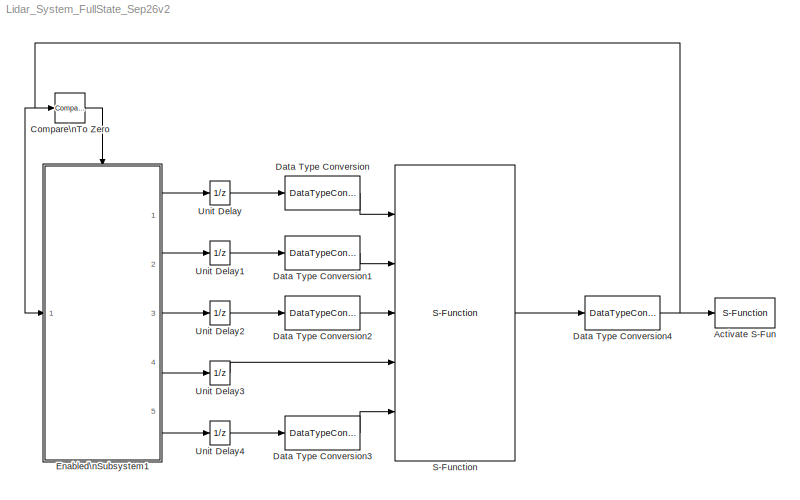
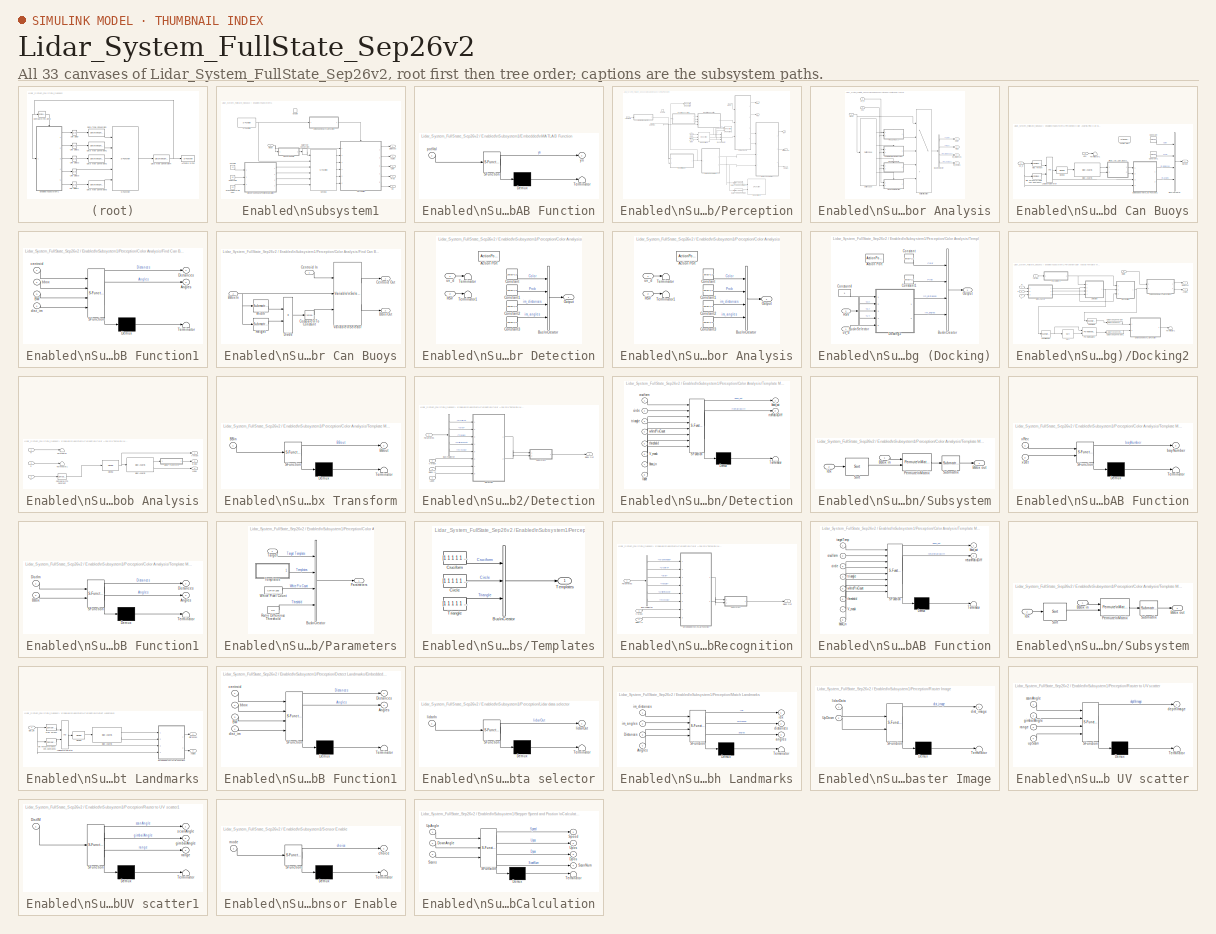
[diagram: thumbnail index - all 33 canvases of the model, root first then tree order]
MODEL Lidar_System_FullState_Sep26v2
KIND model
BLOCK [S-Function] Activate S-Fun
  EnableBusSupport = off
  FunctionName = printOut
  Ports = [1]
BLOCK [Reference] Compare\nTo Zero  REF=simulink/Logic and Bit\nOperations/Compare\nTo Zero
  FunctionWithSeparateData = off
  LogicOutDataTypeMode = uint8
  Ports = [1, 1]
  RTWMemSecDataConstants = Inherit from model
  RTWMemSecDataInternal = Inherit from model
  RTWMemSecDataParameters = Inherit from model
  RTWMemSecFuncExecute = Inherit from model
  RTWMemSecFuncInitTerm = Inherit from model
  ShowPortLabels = FromPortIcon
  SourceBlock = simulink/Logic and Bit\nOperations/Compare\nTo Zero
  SourceType = Compare To Zero
  SystemSampleTime = -1
  ZeroCross = off
  relop = >
BLOCK [DataTypeConversion] Data Type Conversion
  OutDataType = fixdt(1, 16)
  OutDataTypeMode = int32
  OutDataTypeStr = int32
  OutScaling = 2^0
  RndMeth = Floor
  SaturateOnIntegerOverflow = off
BLOCK [DataTypeConversion] Data Type Conversion1
  OutDataType = fixdt(1, 16)
  OutDataTypeMode = int32
  OutDataTypeStr = int32
  OutScaling = 2^0
  RndMeth = Floor
  SaturateOnIntegerOverflow = off
BLOCK [DataTypeConversion] Data Type Conversion2
  OutDataType = fixdt(1, 16)
  OutDataTypeMode = int32
  OutDataTypeStr = int32
  OutScaling = 2^0
  RndMeth = Floor
  SaturateOnIntegerOverflow = off
BLOCK [DataTypeConversion] Data Type Conversion3
  OutDataType = fixdt(1, 16)
  OutDataTypeMode = int32
  OutDataTypeStr = int32
  OutScaling = 2^0
  RndMeth = Floor
  SaturateOnIntegerOverflow = off
BLOCK [DataTypeConversion] Data Type Conversion4
  OutDataType = fixdt(1, 16)
  OutDataTypeMode = uint32
  OutDataTypeStr = uint32
  OutScaling = 2^0
  RndMeth = Floor
  SaturateOnIntegerOverflow = off
BLOCK [SubSystem] Enabled\nSubsystem1
  FunctionWithSeparateData = off
  MaskHideContents = off
  MinAlgLoopOccurrences = off
  Opaque = off
  Ports = [1, 5, 1]
  PropExecContextOutsideSubsystem = off
  RTWSystemCode = Auto
  RequestExecContextInheritance = off
  TreatAsAtomicUnit = on
BLOCK [Outport] Enabled\nSubsystem1/Angles
  IconDisplay = Port number
  OutDataType = fixdt(1, 16)
  OutScaling = 2^0
  Port = 2
BLOCK [Outport] Enabled\nSubsystem1/Color
  IconDisplay = Port number
  OutDataType = fixdt(1, 16)
  OutScaling = 2^0
  Port = 3
BLOCK [DataTypeConversion] Enabled\nSubsystem1/Data Type Conversion
  OutDataType = fixdt(1, 16)
  OutDataTypeMode = int32
  OutDataTypeStr = int32
  OutScaling = 2^0
  RndMeth = Floor
  SaturateOnIntegerOverflow = off
BLOCK [Outport] Enabled\nSubsystem1/Distances
  IconDisplay = Port number
  OutDataType = fixdt(1, 16)
  OutScaling = 2^0
BLOCK [Constant] Enabled\nSubsystem1/Down Angle
  OutDataType = fixdt(1, 16)
  OutScaling = 2^0
  Value = -35
BLOCK [SubSystem] Enabled\nSubsystem1/Embedded\nMATLAB Function
  FunctionWithSeparateData = off
  MaskDescription = Embedded MATLAB block
  MaskDisplay = disp('check_pot_val');
  MaskHideContents = off
  MaskIconFrame = on
  MaskIconOpaque = off
  MaskIconRotate = none
  MaskIconUnits = autoscale
  MaskPortRotate = default
  MaskSelfModifiable = on
  MaskType = Stateflow
  MinAlgLoopOccurrences = off
  Opaque = off
  PermitHierarchicalResolution = ExplicitOnly
  Ports = [1, 1]
  PropExecContextOutsideSubsystem = off
  RTWSystemCode = Auto
  RequestExecContextInheritance = off
BLOCK [Demux] Enabled\nSubsystem1/Embedded\nMATLAB Function/ Demux 
  Outputs = 1
  Ports = [1, 1]
BLOCK [S-Function] Enabled\nSubsystem1/Embedded\nMATLAB Function/ SFunction 
  EnableBusSupport = on
  FunctionName = sf_sfun
  PortCounts = [1 2]
  Ports = [1, 2]
  Tag = Stateflow S-Function Lidar_System_FullState_Sep26v2 13
BLOCK [Terminator] Enabled\nSubsystem1/Embedded\nMATLAB Function/ Terminator 
BLOCK [Inport] Enabled\nSubsystem1/Embedded\nMATLAB Function/potVal
  IconDisplay = Port number
  OutDataType = sfix(16)
  OutScaling = 2^0
BLOCK [Outport] Enabled\nSubsystem1/Embedded\nMATLAB Function/yn
  IconDisplay = Port number
  OutDataType = sfix(16)
  OutScaling = 2^0
BLOCK [EnablePort] Enabled\nSubsystem1/Enable
  Ports = []
BLOCK [Inport] Enabled\nSubsystem1/Mode
  IconDisplay = Port number
  OutDataType = fixdt(1, 16)
  OutScaling = 2^0
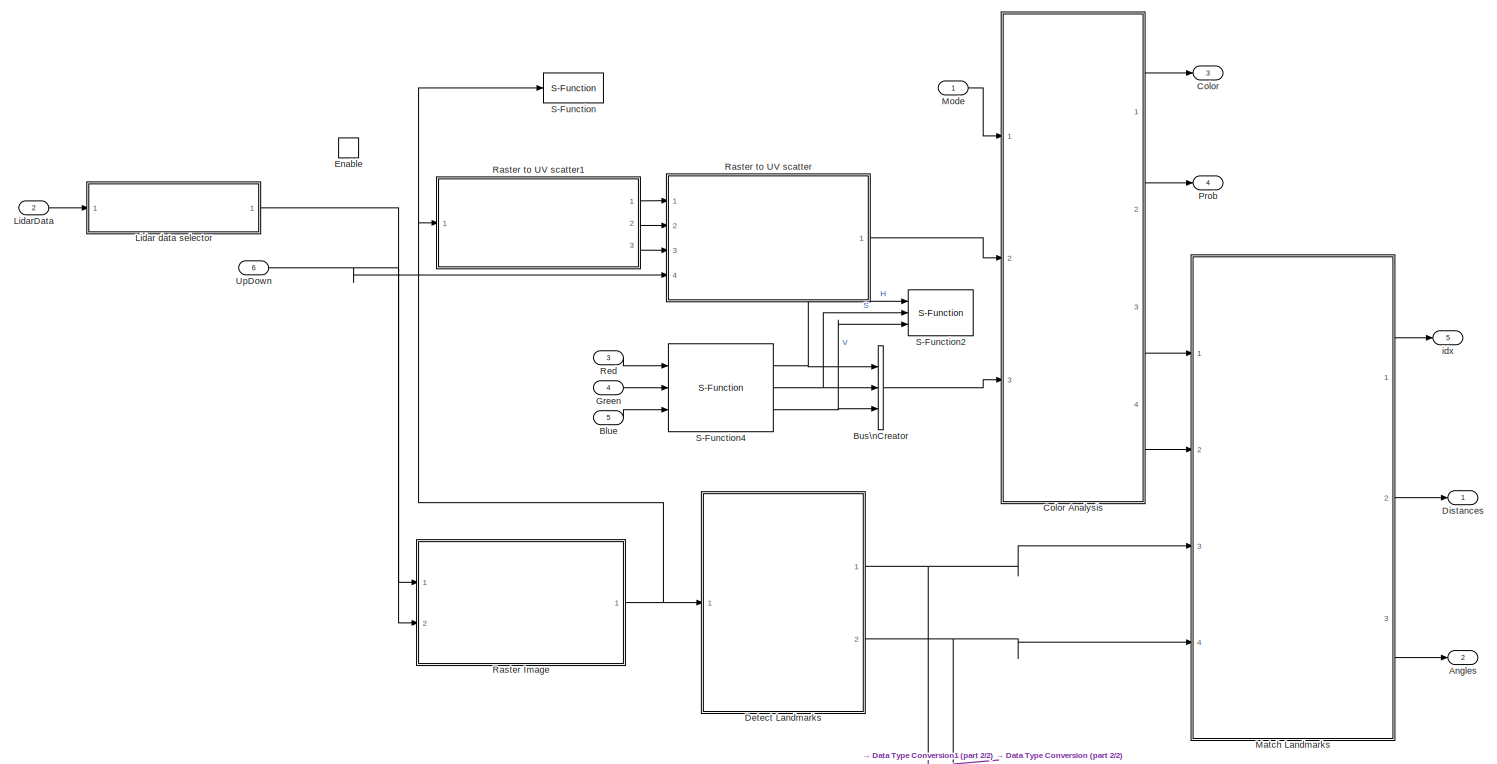
[diagram: Enabled\nSubsystem1/Perception - part 1/2, most of the canvas]
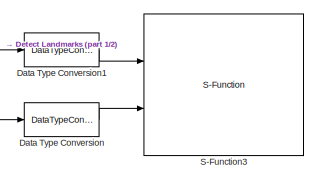
[diagram: Enabled\nSubsystem1/Perception - part 2/2, bottom right region]
BLOCK [SubSystem] Enabled\nSubsystem1/Perception
  FunctionWithSeparateData = off
  MaskHideContents = off
  MinAlgLoopOccurrences = off
  Opaque = off
  Ports = [6, 5, 1]
  PropExecContextOutsideSubsystem = off
  RTWSystemCode = Auto
  RequestExecContextInheritance = off
  TreatAsAtomicUnit = on
BLOCK [Outport] Enabled\nSubsystem1/Perception/Angles
  IconDisplay = Port number
  OutDataType = fixdt(1, 16)
  OutScaling = 2^0
  Port = 2
BLOCK [Inport] Enabled\nSubsystem1/Perception/Blue
  IconDisplay = Port number
  OutDataType = fixdt(1, 16)
  OutScaling = 2^0
  Port = 5
BLOCK [BusCreator] Enabled\nSubsystem1/Perception/Bus\nCreator
  DisplayOption = bar
  Inputs = 3
  Ports = [3, 1]
BLOCK [Outport] Enabled\nSubsystem1/Perception/Color
  IconDisplay = Port number
  OutDataType = fixdt(1, 16)
  OutScaling = 2^0
  Port = 3
BLOCK [SubSystem] Enabled\nSubsystem1/Perception/Color Analysis
  FunctionWithSeparateData = off
  MaskHideContents = off
  MinAlgLoopOccurrences = off
  Opaque = off
  Ports = [3, 4]
  PropExecContextOutsideSubsystem = off
  RTWSystemCode = Auto
  RequestExecContextInheritance = off
BLOCK [BusSelector] Enabled\nSubsystem1/Perception/Color Analysis/Bus\nSelector
  OutputSignals = Color,Prob,im_distances,im_angles
  Ports = [1, 4]
BLOCK [Outport] Enabled\nSubsystem1/Perception/Color Analysis/Color
  IconDisplay = Port number
  OutDataType = fixdt(1, 16)
  OutScaling = 2^0
BLOCK [SubSystem] Enabled\nSubsystem1/Perception/Color Analysis/Find Can Buoys
  FunctionWithSeparateData = off
  MaskHideContents = off
  MinAlgLoopOccurrences = off
  Opaque = off
  Ports = [2, 1, 0, 0, 0, 0, 0, 1]
  PropExecContextOutsideSubsystem = off
  RTWSystemCode = Auto
  RequestExecContextInheritance = off
  TreatAsAtomicUnit = on
BLOCK [ActionPort] Enabled\nSubsystem1/Perception/Color Analysis/Find Can Buoys/Action Port
BLOCK [Reference] Enabled\nSubsystem1/Perception/Color Analysis/Find Can Buoys/Blob Analysis  REF=vipstatistics/Blob Analysis
  DialogController = vipDDGCreate
  DialogControllerArgs = DataTag0
  LockScale = off
  Ports = [1, 2]
  SourceBlock = vipstatistics/Blob Analysis
  SourceType = Blob Analysis
  accumFracLength = 0
  accumMode = Binary point scaling
  accumWordLength = 32
  angle = off
  area = off
  bBox = on
  centroid = on
  conn = 8
  eccentricity = off
  equivDiameterSq = off
  excludeBorderBlob = on
  extent = off
  fillValues = -1
  firstCoeffFracLength = 14
  firstCoeffMode = Binary point scaling
  firstCoeffWordLength = 16
  isCount = off
  isFill = on
  isLabel = off
  isOutVarDim = off
  majorAxis = off
  maxArea = intmax('uint32')
  maxBlobs = 12
  memoryFracLength = 16
  memoryMode = Same as product output
  memoryWordLength = 32
  minArea = 30
  minorAxis = off
  outDT = double
  outputFracLength = 16
  outputMode = Binary point scaling
  outputWordLength = 32
  overflowMode = off
  perimeter = off
  prodOutputFracLength = 16
  prodOutputMode = Binary point scaling
  prodOutputWordLength = 32
  roundingMode = Floor
  secondCoeffFracLength = 16
  secondCoeffMode = Binary point scaling
  secondCoeffWordLength = 32
  useMaxArea = off
  useMinArea = on
  warnIfNumBlobsExceeded = on
BLOCK [BusCreator] Enabled\nSubsystem1/Perception/Color Analysis/Find Can Buoys/Bus\nCreator
  DisplayOption = bar
  Ports = [4, 1]
BLOCK [Reference] Enabled\nSubsystem1/Perception/Color Analysis/Find Can Buoys/Closing  REF=vipmorphops/Closing
  Ports = [1, 1]
  SourceBlock = vipmorphops/Closing
  SourceType = Closing
  nhoodsrc = Specify via dialog
  strel = strel('rectangle',[5 7])
BLOCK [Constant] Enabled\nSubsystem1/Perception/Color Analysis/Find Can Buoys/Constant
  OutDataType = fixdt(1, 16)
  OutScaling = 2^0
  Value = zeros(4,1)
BLOCK [Constant] Enabled\nSubsystem1/Perception/Color Analysis/Find Can Buoys/Constant1
  OutDataType = fixdt(1, 16)
  OutScaling = 2^0
  Value = zeros(4,1)
BLOCK [SubSystem] Enabled\nSubsystem1/Perception/Color Analysis/Find Can Buoys/Embedded\nMATLAB Function1
  FunctionWithSeparateData = off
  MaskDescription = Embedded MATLAB block
  MaskDisplay = disp('landmarkInfo');
  MaskHideContents = off
  MaskIconFrame = on
  MaskIconOpaque = off
  MaskIconRotate = none
  MaskIconUnits = autoscale
  MaskPortRotate = default
  MaskSelfModifiable = on
  MaskType = Stateflow
  MinAlgLoopOccurrences = off
  Opaque = off
  PermitHierarchicalResolution = ExplicitOnly
  Ports = [4, 2]
  PropExecContextOutsideSubsystem = off
  RTWSystemCode = Auto
  RequestExecContextInheritance = off
BLOCK [Demux] Enabled\nSubsystem1/Perception/Color Analysis/Find Can Buoys/Embedded\nMATLAB Function1/ Demux 
  Outputs = 1
  Ports = [1, 1]
BLOCK [S-Function] Enabled\nSubsystem1/Perception/Color Analysis/Find Can Buoys/Embedded\nMATLAB Function1/ SFunction 
  EnableBusSupport = on
  FunctionName = sf_sfun
  PortCounts = [4 3]
  Ports = [4, 3]
  Tag = Stateflow S-Function Lidar_System_FullState_Sep26v2 6
BLOCK [Terminator] Enabled\nSubsystem1/Perception/Color Analysis/Find Can Buoys/Embedded\nMATLAB Function1/ Terminator 
BLOCK [Outport] Enabled\nSubsystem1/Perception/Color Analysis/Find Can Buoys/Embedded\nMATLAB Function1/Angles
  IconDisplay = Port number
  Port = 2
BLOCK [Inport] Enabled\nSubsystem1/Perception/Color Analysis/Find Can Buoys/Embedded\nMATLAB Function1/BW
  IconDisplay = Port number
  Port = 3
BLOCK [Outport] Enabled\nSubsystem1/Perception/Color Analysis/Find Can Buoys/Embedded\nMATLAB Function1/Distances
  IconDisplay = Port number
BLOCK [Inport] Enabled\nSubsystem1/Perception/Color Analysis/Find Can Buoys/Embedded\nMATLAB Function1/bbox
  IconDisplay = Port number
  OutDataType = sfix(16)
  OutScaling = 2^0
  Port = 2
BLOCK [Inport] Enabled\nSubsystem1/Perception/Color Analysis/Find Can Buoys/Embedded\nMATLAB Function1/centroid
  IconDisplay = Port number
BLOCK [Inport] Enabled\nSubsystem1/Perception/Color Analysis/Find Can Buoys/Embedded\nMATLAB Function1/dist_im
  IconDisplay = Port number
  Port = 4
BLOCK [SubSystem] Enabled\nSubsystem1/Perception/Color Analysis/Find Can Buoys/Filter for Can Buoys
  FunctionWithSeparateData = off
  MaskHideContents = off
  MinAlgLoopOccurrences = off
  Opaque = off
  Ports = [2, 2]
  PropExecContextOutsideSubsystem = off
  RTWSystemCode = Auto
  RequestExecContextInheritance = off
BLOCK [Inport] Enabled\nSubsystem1/Perception/Color Analysis/Find Can Buoys/Filter for Can Buoys/BBox In
  IconDisplay = Port number
  OutDataType = fixdt(1, 16)
  OutScaling = 2^0
  Port = 2
BLOCK [Outport] Enabled\nSubsystem1/Perception/Color Analysis/Find Can Buoys/Filter for Can Buoys/BBox Out
  IconDisplay = Port number
  OutDataType = fixdt(1, 16)
  OutScaling = 2^0
  Port = 2
BLOCK [Inport] Enabled\nSubsystem1/Perception/Color Analysis/Find Can Buoys/Filter for Can Buoys/Centroid In
  IconDisplay = Port number
  OutDataType = fixdt(1, 16)
  OutScaling = 2^0
BLOCK [Outport] Enabled\nSubsystem1/Perception/Color Analysis/Find Can Buoys/Filter for Can Buoys/Centroid Out
  IconDisplay = Port number
  OutDataType = fixdt(1, 16)
  OutScaling = 2^0
BLOCK [Reference] Enabled\nSubsystem1/Perception/Color Analysis/Find Can Buoys/Filter for Can Buoys/Compare\nTo Constant  REF=simulink/Logic and Bit\nOperations/Compare\nTo Constant
  FunctionWithSeparateData = off
  LogicOutDataTypeMode = uint8
  Ports = [1, 1]
  RTWMemSecDataConstants = Inherit from model
  RTWMemSecDataInternal = Inherit from model
  RTWMemSecDataParameters = Inherit from model
  RTWMemSecFuncExecute = Inherit from model
  RTWMemSecFuncInitTerm = Inherit from model
  ShowPortLabels = FromPortIcon
  SourceBlock = simulink/Logic and Bit\nOperations/Compare\nTo Constant
  SourceType = Compare To Constant
  SystemSampleTime = -1
  ZeroCross = off
  const = 0.5
  relop = <=
BLOCK [Product] Enabled\nSubsystem1/Perception/Color Analysis/Find Can Buoys/Filter for Can Buoys/Divide
  InputSameDT = off
  Inputs = */
  OutDataType = fixdt(1, 16)
  OutDataTypeMode = Inherit via internal rule
  OutDataTypeStr = Inherit: Inherit via internal rule
  OutScaling = 2^-10
  Ports = [2, 1]
  RndMeth = Floor
  SaturateOnIntegerOverflow = off
BLOCK [Reference] Enabled\nSubsystem1/Perception/Color Analysis/Find Can Buoys/Filter for Can Buoys/Height  REF=dspmtrx3/Submatrix
  ColEndIndex = 1
  ColEndMode = Last
  ColSpan = All columns
  ColStartIndex = 1
  ColStartMode = First
  Ports = [1, 1]
  RowEndIndex = 1
  RowEndMode = Last
  RowSpan = One row
  RowStartIndex = 4
  RowStartMode = Index
  SourceBlock = dspmtrx3/Submatrix
  SourceType = Submatrix
BLOCK [Reference] Enabled\nSubsystem1/Perception/Color Analysis/Find Can Buoys/Filter for Can Buoys/Variable\nSelector  REF=dspindex/Variable\nSelector
  Elements = [1 3]
  FillMode = on
  FillValues = -1
  IdxMode = Variable
  NumInputs = 2
  Ports = [3, 2]
  ShowPortLabels = off
  SourceBlock = dspindex/Variable\nSelector
  SourceType = Variable Selector
  ZerOneIdxMode = Zero-based
  errmode = Clip Index
  rowsOrCols = Columns
BLOCK [Reference] Enabled\nSubsystem1/Perception/Color Analysis/Find Can Buoys/Filter for Can Buoys/Width  REF=dspmtrx3/Submatrix
  ColEndIndex = 1
  ColEndMode = Last
  ColSpan = All columns
  ColStartIndex = 1
  ColStartMode = First
  Ports = [1, 1]
  RowEndIndex = 1
  RowEndMode = Last
  RowSpan = One row
  RowStartIndex = 3
  RowStartMode = Index
  SourceBlock = dspmtrx3/Submatrix
  SourceType = Submatrix
BLOCK [Inport] Enabled\nSubsystem1/Perception/Color Analysis/Find Can Buoys/HSV
  IconDisplay = Port number
  OutDataType = fixdt(1, 16)
  OutScaling = 2^0
  Port = 2
BLOCK [Logic] Enabled\nSubsystem1/Perception/Color Analysis/Find Can Buoys/Logical\nOperator
  AllPortsSameDT = off
  LogicDataType = fixdt(0, 8)
  OutDataTypeMode = boolean
  OutDataTypeStr = boolean
  Ports = [2, 1]
BLOCK [Reference] Enabled\nSubsystem1/Perception/Color Analysis/Find Can Buoys/Max Thresh  REF=simulink/Logic and Bit\nOperations/Compare\nTo Constant
  FunctionWithSeparateData = off
  LogicOutDataTypeMode = boolean
  Ports = [1, 1]
  RTWMemSecDataConstants = Inherit from model
  RTWMemSecDataInternal = Inherit from model
  RTWMemSecDataParameters = Inherit from model
  RTWMemSecFuncExecute = Inherit from model
  RTWMemSecFuncInitTerm = Inherit from model
  ShowPortLabels = FromPortIcon
  SourceBlock = simulink/Logic and Bit\nOperations/Compare\nTo Constant
  SourceType = Compare To Constant
  SystemSampleTime = -1
  ZeroCross = off
  const = 25000
  relop = <=
BLOCK [Reference] Enabled\nSubsystem1/Perception/Color Analysis/Find Can Buoys/Min Thresh\n(removes pontoons)  REF=simulink/Logic and Bit\nOperations/Compare\nTo Constant
  FunctionWithSeparateData = off
  LogicOutDataTypeMode = boolean
  Ports = [1, 1]
  RTWMemSecDataConstants = Inherit from model
  RTWMemSecDataInternal = Inherit from model
  RTWMemSecDataParameters = Inherit from model
  RTWMemSecFuncExecute = Inherit from model
  RTWMemSecFuncInitTerm = Inherit from model
  ShowPortLabels = FromPortIcon
  SourceBlock = simulink/Logic and Bit\nOperations/Compare\nTo Constant
  SourceType = Compare To Constant
  SystemSampleTime = -1
  ZeroCross = off
  const = 5000
  relop = >
BLOCK [Outport] Enabled\nSubsystem1/Perception/Color Analysis/Find Can Buoys/Output
  IconDisplay = Port number
  OutDataType = fixdt(1, 16)
  OutScaling = 2^0
BLOCK [Terminator] Enabled\nSubsystem1/Perception/Color Analysis/Find Can Buoys/Terminator1
BLOCK [Inport] Enabled\nSubsystem1/Perception/Color Analysis/Find Can Buoys/uv_d
  IconDisplay = Port number
  OutDataType = fixdt(1, 16)
  OutScaling = 2^0
BLOCK [Inport] Enabled\nSubsystem1/Perception/Color Analysis/HSV
  IconDisplay = Port number
  OutDataType = fixdt(1, 16)
  OutScaling = 2^0
  Port = 3
BLOCK [SubSystem] Enabled\nSubsystem1/Perception/Color Analysis/Light Tower Detection
  FunctionWithSeparateData = off
  MaskHideContents = off
  MinAlgLoopOccurrences = off
  Opaque = off
  Ports = [2, 1, 0, 0, 0, 0, 0, 1]
  PropExecContextOutsideSubsystem = off
  RTWSystemCode = Auto
  RequestExecContextInheritance = off
  TreatAsAtomicUnit = on
BLOCK [ActionPort] Enabled\nSubsystem1/Perception/Color Analysis/Light Tower Detection/Action Port
BLOCK [BusCreator] Enabled\nSubsystem1/Perception/Color Analysis/Light Tower Detection/Bus\nCreator
  DisplayOption = bar
  Ports = [4, 1]
BLOCK [Constant] Enabled\nSubsystem1/Perception/Color Analysis/Light Tower Detection/Constant
  OutDataType = fixdt(1, 16)
  OutScaling = 2^0
  Value = zeros(4,1)
BLOCK [Constant] Enabled\nSubsystem1/Perception/Color Analysis/Light Tower Detection/Constant1
  OutDataType = fixdt(1, 16)
  OutScaling = 2^0
  Value = zeros(4,1)
BLOCK [Constant] Enabled\nSubsystem1/Perception/Color Analysis/Light Tower Detection/Constant2
  OutDataType = fixdt(1, 16)
  OutScaling = 2^0
  Value = zeros(4,1)
BLOCK [Constant] Enabled\nSubsystem1/Perception/Color Analysis/Light Tower Detection/Constant3
  OutDataType = fixdt(1, 16)
  OutScaling = 2^0
  Value = zeros(4,1)
BLOCK [Inport] Enabled\nSubsystem1/Perception/Color Analysis/Light Tower Detection/HSV
  IconDisplay = Port number
  OutDataType = fixdt(1, 16)
  OutScaling = 2^0
  Port = 2
BLOCK [Outport] Enabled\nSubsystem1/Perception/Color Analysis/Light Tower Detection/Output
  IconDisplay = Port number
  OutDataType = fixdt(1, 16)
  OutScaling = 2^0
BLOCK [Terminator] Enabled\nSubsystem1/Perception/Color Analysis/Light Tower Detection/Terminator
BLOCK [Terminator] Enabled\nSubsystem1/Perception/Color Analysis/Light Tower Detection/Terminator1
BLOCK [Inport] Enabled\nSubsystem1/Perception/Color Analysis/Light Tower Detection/uv_d
  IconDisplay = Port number
  OutDataType = fixdt(1, 16)
  OutScaling = 2^0
BLOCK [Inport] Enabled\nSubsystem1/Perception/Color Analysis/Mode
  IconDisplay = Port number
  OutDataType = fixdt(1, 16)
  OutScaling = 2^0
BLOCK [MultiPortSwitch] Enabled\nSubsystem1/Perception/Color Analysis/Multiport\nSwitch
  InputSameDT = off
  Inputs = 4
  OutDataType = fixdt(1, 16)
  OutScaling = 2^0
  Ports = [5, 1]
  SaturateOnIntegerOverflow = off
BLOCK [SubSystem] Enabled\nSubsystem1/Perception/Color Analysis/No Color Analysis
  FunctionWithSeparateData = off
  MaskHideContents = off
  MinAlgLoopOccurrences = off
  Opaque = off
  Ports = [2, 1, 0, 0, 0, 0, 0, 1]
  PropExecContextOutsideSubsystem = off
  RTWSystemCode = Auto
  RequestExecContextInheritance = off
  TreatAsAtomicUnit = on
BLOCK [ActionPort] Enabled\nSubsystem1/Perception/Color Analysis/No Color Analysis/Action Port
BLOCK [BusCreator] Enabled\nSubsystem1/Perception/Color Analysis/No Color Analysis/Bus\nCreator
  DisplayOption = bar
  Ports = [4, 1]
BLOCK [Constant] Enabled\nSubsystem1/Perception/Color Analysis/No Color Analysis/Constant
  OutDataType = fixdt(1, 16)
  OutScaling = 2^0
  Value = zeros(4,1)
BLOCK [Constant] Enabled\nSubsystem1/Perception/Color Analysis/No Color Analysis/Constant1
  OutDataType = fixdt(1, 16)
  OutScaling = 2^0
  Value = zeros(4,1)
BLOCK [Constant] Enabled\nSubsystem1/Perception/Color Analysis/No Color Analysis/Constant2
  OutDataType = fixdt(1, 16)
  OutScaling = 2^0
  Value = zeros(4,1)
BLOCK [Constant] Enabled\nSubsystem1/Perception/Color Analysis/No Color Analysis/Constant3
  OutDataType = fixdt(1, 16)
  OutScaling = 2^0
  Value = zeros(4,1)
BLOCK [Inport] Enabled\nSubsystem1/Perception/Color Analysis/No Color Analysis/HSV
  IconDisplay = Port number
  OutDataType = fixdt(1, 16)
  OutScaling = 2^0
  Port = 2
BLOCK [Outport] Enabled\nSubsystem1/Perception/Color Analysis/No Color Analysis/Output
  IconDisplay = Port number
  OutDataType = fixdt(1, 16)
  OutScaling = 2^0
BLOCK [Terminator] Enabled\nSubsystem1/Perception/Color Analysis/No Color Analysis/Terminator
BLOCK [Terminator] Enabled\nSubsystem1/Perception/Color Analysis/No Color Analysis/Terminator1
BLOCK [Inport] Enabled\nSubsystem1/Perception/Color Analysis/No Color Analysis/uv_d
  IconDisplay = Port number
  OutDataType = fixdt(1, 16)
  OutScaling = 2^0
BLOCK [Outport] Enabled\nSubsystem1/Perception/Color Analysis/Prob
  IconDisplay = Port number
  OutDataType = fixdt(1, 16)
  OutScaling = 2^0
  Port = 2
BLOCK [SwitchCase] Enabled\nSubsystem1/Perception/Color Analysis/Switch Case
  CaseConditions = {1,2,3}
  Ports = [1, 4]
BLOCK [SubSystem] Enabled\nSubsystem1/Perception/Color Analysis/Template Matching (Docking)
  FunctionWithSeparateData = off
  MaskHideContents = off
  MinAlgLoopOccurrences = off
  Opaque = off
  Ports = [2, 1, 0, 0, 0, 0, 0, 1]
  PropExecContextOutsideSubsystem = off
  RTWSystemCode = Auto
  RequestExecContextInheritance = off
  TreatAsAtomicUnit = on
BLOCK [ActionPort] Enabled\nSubsystem1/Perception/Color Analysis/Template Matching (Docking)/Action Port
BLOCK [BusCreator] Enabled\nSubsystem1/Perception/Color Analysis/Template Matching (Docking)/Bus\nCreator
  DisplayOption = bar
  Ports = [4, 1]
BLOCK [BusSelector] Enabled\nSubsystem1/Perception/Color Analysis/Template Matching (Docking)/Bus\nSelector
  OutputSignals = H,S,V
  Ports = [1, 3]
BLOCK [Constant] Enabled\nSubsystem1/Perception/Color Analysis/Template Matching (Docking)/Constant
  OutDataType = fixdt(1, 16)
  OutScaling = 2^0
  Value = zeros(4,1)
BLOCK [Constant] Enabled\nSubsystem1/Perception/Color Analysis/Template Matching (Docking)/Constant1
  OutDataType = fixdt(1, 16)
  OutScaling = 2^0
  Value = zeros(4,1)
BLOCK [Constant] Enabled\nSubsystem1/Perception/Color Analysis/Template Matching (Docking)/Constant4
  OutDataType = fixdt(1, 16)
  OutScaling = 2^0
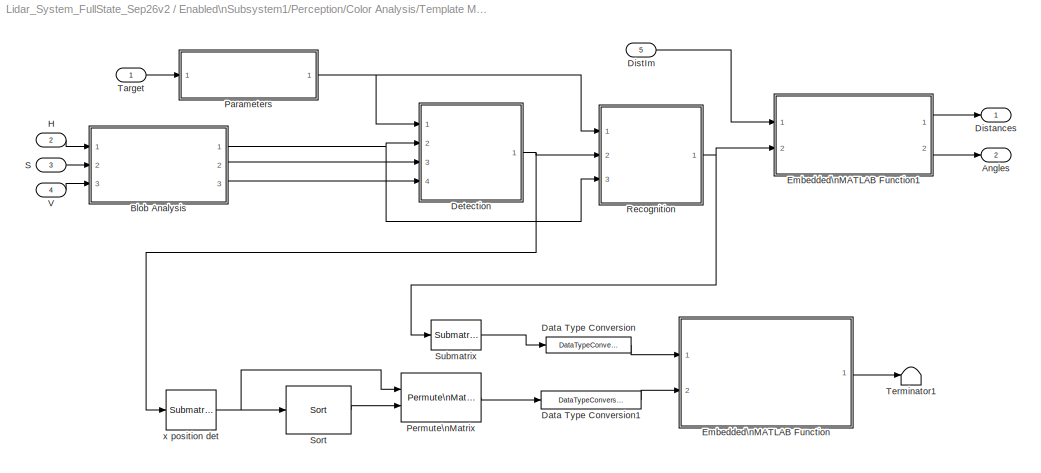
BLOCK [SubSystem] Enabled\nSubsystem1/Perception/Color Analysis/Template Matching (Docking)/Docking2
  FunctionWithSeparateData = off
  MaskHideContents = off
  MinAlgLoopOccurrences = off
  Opaque = off
  Ports = [5, 2]
  PropExecContextOutsideSubsystem = off
  RTWSystemCode = Auto
  RequestExecContextInheritance = off
BLOCK [Outport] Enabled\nSubsystem1/Perception/Color Analysis/Template Matching (Docking)/Docking2/Angles
  IconDisplay = Port number
  Port = 2
BLOCK [SubSystem] Enabled\nSubsystem1/Perception/Color Analysis/Template Matching (Docking)/Docking2/Blob Analysis
  FunctionWithSeparateData = off
  MaskHideContents = off
  MinAlgLoopOccurrences = off
  Opaque = off
  Ports = [3, 3]
  PropExecContextOutsideSubsystem = off
  RTWSystemCode = Auto
  RequestExecContextInheritance = off
BLOCK [Outport] Enabled\nSubsystem1/Perception/Color Analysis/Template Matching (Docking)/Docking2/Blob Analysis/B Box
  IconDisplay = Port number
  OutDataType = fixdt(1, 16)
  OutScaling = 2^0
  Port = 2
BLOCK [SubSystem] Enabled\nSubsystem1/Perception/Color Analysis/Template Matching (Docking)/Docking2/Blob Analysis/BBox Transform
  FunctionWithSeparateData = off
  MaskDescription = Embedded MATLAB block
  MaskDisplay = disp('Btrans');
  MaskHideContents = off
  MaskIconFrame = on
  MaskIconOpaque = off
  MaskIconRotate = none
  MaskIconUnits = autoscale
  MaskPortRotate = default
  MaskSelfModifiable = on
  MaskType = Stateflow
  MinAlgLoopOccurrences = off
  Opaque = off
  PermitHierarchicalResolution = ExplicitOnly
  Ports = [1, 1]
  PropExecContextOutsideSubsystem = off
  RTWSystemCode = Auto
  RequestExecContextInheritance = off
BLOCK [Demux] Enabled\nSubsystem1/Perception/Color Analysis/Template Matching (Docking)/Docking2/Blob Analysis/BBox Transform/ Demux 
  Outputs = 1
  Ports = [1, 1]
BLOCK [S-Function] Enabled\nSubsystem1/Perception/Color Analysis/Template Matching (Docking)/Docking2/Blob Analysis/BBox Transform/ SFunction 
  EnableBusSupport = on
  FunctionName = sf_sfun
  PortCounts = [1 2]
  Ports = [1, 2]
  Tag = Stateflow S-Function Lidar_System_FullState_Sep26v2 7
BLOCK [Terminator] Enabled\nSubsystem1/Perception/Color Analysis/Template Matching (Docking)/Docking2/Blob Analysis/BBox Transform/ Terminator 
BLOCK [Inport] Enabled\nSubsystem1/Perception/Color Analysis/Template Matching (Docking)/Docking2/Blob Analysis/BBox Transform/BBin
  IconDisplay = Port number
  OutDataType = sfix(16)
  OutScaling = 2^0
BLOCK [Outport] Enabled\nSubsystem1/Perception/Color Analysis/Template Matching (Docking)/Docking2/Blob Analysis/BBox Transform/BBout
  IconDisplay = Port number
  OutDataType = sfix(16)
  OutScaling = 2^0
BLOCK [Reference] Enabled\nSubsystem1/Perception/Color Analysis/Template Matching (Docking)/Docking2/Blob Analysis/Blob Analysis  REF=vipstatistics/Blob Analysis
  DialogController = vipDDGCreate
  DialogControllerArgs = DataTag1
  LockScale = off
  Ports = [1, 2]
  SourceBlock = vipstatistics/Blob Analysis
  SourceType = Blob Analysis
  accumFracLength = 0
  accumMode = Binary point scaling
  accumWordLength = 32
  angle = off
  area = off
  bBox = on
  centroid = off
  conn = 8
  eccentricity = off
  equivDiameterSq = off
  excludeBorderBlob = on
  extent = off
  fillValues = -1
  firstCoeffFracLength = 14
  firstCoeffMode = Binary point scaling
  firstCoeffWordLength = 16
  isCount = off
  isFill = on
  isLabel = on
  isOutVarDim = off
  majorAxis = off
  maxArea = intmax('uint32')
  maxBlobs = 10
  memoryFracLength = 16
  memoryMode = Same as product output
  memoryWordLength = 32
  minArea = 400
  minorAxis = off
  outDT = double
  outputFracLength = 16
  outputMode = Binary point scaling
  outputWordLength = 32
  overflowMode = off
  perimeter = off
  prodOutputFracLength = 16
  prodOutputMode = Binary point scaling
  prodOutputWordLength = 32
  roundingMode = Floor
  secondCoeffFracLength = 16
  secondCoeffMode = Binary point scaling
  secondCoeffWordLength = 32
  useMaxArea = off
  useMinArea = on
  warnIfNumBlobsExceeded = on
BLOCK [Reference] Enabled\nSubsystem1/Perception/Color Analysis/Template Matching (Docking)/Docking2/Blob Analysis/Closing  REF=vipmorphops/Closing
  Ports = [1, 1]
  SourceBlock = vipmorphops/Closing
  SourceType = Closing
  nhoodsrc = Specify via dialog
  strel = strel('disk',1,8)
BLOCK [Reference] Enabled\nSubsystem1/Perception/Color Analysis/Template Matching (Docking)/Docking2/Blob Analysis/Compare\nTo Constant  REF=simulink/Logic and Bit\nOperations/Compare\nTo Constant
  FunctionWithSeparateData = off
  LogicOutDataTypeMode = boolean
  Ports = [1, 1]
  RTWMemSecDataConstants = Inherit from model
  RTWMemSecDataInternal = Inherit from model
  RTWMemSecDataParameters = Inherit from model
  RTWMemSecFuncExecute = Inherit from model
  RTWMemSecFuncInitTerm = Inherit from model
  ShowPortLabels = FromPortIcon
  SourceBlock = simulink/Logic and Bit\nOperations/Compare\nTo Constant
  SourceType = Compare To Constant
  SystemSampleTime = -1
  ZeroCross = off
  const = 70
  relop = <=
BLOCK [Inport] Enabled\nSubsystem1/Perception/Color Analysis/Template Matching (Docking)/Docking2/Blob Analysis/H
  IconDisplay = Port number
  OutDataType = fixdt(1, 16)
  OutScaling = 2^0
BLOCK [Outport] Enabled\nSubsystem1/Perception/Color Analysis/Template Matching (Docking)/Docking2/Blob Analysis/Label
  IconDisplay = Port number
  OutDataType = fixdt(1, 16)
  OutScaling = 2^0
  Port = 3
BLOCK [Inport] Enabled\nSubsystem1/Perception/Color Analysis/Template Matching (Docking)/Docking2/Blob Analysis/S
  IconDisplay = Port number
  OutDataType = fixdt(1, 16)
  OutScaling = 2^0
  Port = 2
BLOCK [Terminator] Enabled\nSubsystem1/Perception/Color Analysis/Template Matching (Docking)/Docking2/Blob Analysis/Terminator
BLOCK [Terminator] Enabled\nSubsystem1/Perception/Color Analysis/Template Matching (Docking)/Docking2/Blob Analysis/Terminator1
BLOCK [Inport] Enabled\nSubsystem1/Perception/Color Analysis/Template Matching (Docking)/Docking2/Blob Analysis/V
  IconDisplay = Port number
  OutDataType = fixdt(1, 16)
  OutScaling = 2^0
  Port = 3
BLOCK [Outport] Enabled\nSubsystem1/Perception/Color Analysis/Template Matching (Docking)/Docking2/Blob Analysis/V Mask
  IconDisplay = Port number
  OutDataType = fixdt(1, 16)
  OutScaling = 2^0
BLOCK [DataTypeConversion] Enabled\nSubsystem1/Perception/Color Analysis/Template Matching (Docking)/Docking2/Data Type Conversion
  OutDataType = fixdt(1, 16)
  OutDataTypeMode = int16
  OutDataTypeStr = int16
  OutScaling = 2^0
  RndMeth = Floor
  SaturateOnIntegerOverflow = off
BLOCK [DataTypeConversion] Enabled\nSubsystem1/Perception/Color Analysis/Template Matching (Docking)/Docking2/Data Type Conversion1
  OutDataType = fixdt(1, 16)
  OutDataTypeMode = int16
  OutDataTypeStr = int16
  OutScaling = 2^0
  RndMeth = Floor
  SaturateOnIntegerOverflow = off
BLOCK [SubSystem] Enabled\nSubsystem1/Perception/Color Analysis/Template Matching (Docking)/Docking2/Detection
  FunctionWithSeparateData = off
  MaskHideContents = off
  MinAlgLoopOccurrences = off
  Opaque = off
  Ports = [4, 1]
  PropExecContextOutsideSubsystem = off
  RTWSystemCode = Auto
  RequestExecContextInheritance = off
BLOCK [Inport] Enabled\nSubsystem1/Perception/Color Analysis/Template Matching (Docking)/Docking2/Detection/BBox In
  IconDisplay = Port number
  OutDataType = fixdt(1, 16)
  OutScaling = 2^0
  Port = 3
BLOCK [Outport] Enabled\nSubsystem1/Perception/Color Analysis/Template Matching (Docking)/Docking2/Detection/BBox Out
  IconDisplay = Port number
  OutDataType = fixdt(1, 16)
  OutScaling = 2^0
BLOCK [BusSelector] Enabled\nSubsystem1/Perception/Color Analysis/Template Matching (Docking)/Docking2/Detection/Bus\nSelector
  OutputSignals = Templates.Cruciform,Templates.Circle,Templates.Triangle,White Pix Count,Threshold
  Ports = [1, 5]
BLOCK [SubSystem] Enabled\nSubsystem1/Perception/Color Analysis/Template Matching (Docking)/Docking2/Detection/Detection
  FunctionWithSeparateData = off
  MaskDescription = Embedded MATLAB block
  MaskDisplay = disp('detection');
  MaskHideContents = off
  MaskIconFrame = on
  MaskIconOpaque = off
  MaskIconRotate = none
  MaskIconUnits = autoscale
  MaskPortRotate = default
  MaskSelfModifiable = on
  MaskType = Stateflow
  MinAlgLoopOccurrences = off
  Opaque = off
  PermitHierarchicalResolution = ExplicitOnly
  Ports = [8, 2]
  PropExecContextOutsideSubsystem = off
  RTWSystemCode = Auto
  RequestExecContextInheritance = off
BLOCK [Demux] Enabled\nSubsystem1/Perception/Color Analysis/Template Matching (Docking)/Docking2/Detection/Detection/ Demux 
  Outputs = 1
  Ports = [1, 1]
BLOCK [S-Function] Enabled\nSubsystem1/Perception/Color Analysis/Template Matching (Docking)/Docking2/Detection/Detection/ SFunction 
  EnableBusSupport = on
  FunctionName = sf_sfun
  PortCounts = [8 3]
  Ports = [8, 3]
  Tag = Stateflow S-Function Lidar_System_FullState_Sep26v2 8
BLOCK [Terminator] Enabled\nSubsystem1/Perception/Color Analysis/Template Matching (Docking)/Docking2/Detection/Detection/ Terminator 
BLOCK [Inport] Enabled\nSubsystem1/Perception/Color Analysis/Template Matching (Docking)/Docking2/Detection/Detection/V_mask
  IconDisplay = Port number
  Port = 6
BLOCK [Inport] Enabled\nSubsystem1/Perception/Color Analysis/Template Matching (Docking)/Docking2/Detection/Detection/bbox_in
  IconDisplay = Port number
  Port = 7
BLOCK [Outport] Enabled\nSubsystem1/Perception/Color Analysis/Template Matching (Docking)/Docking2/Detection/Detection/bbox_out
  IconDisplay = Port number
  OutDataType = sfix(16)
  OutScaling = 2^0
BLOCK [Inport] Enabled\nSubsystem1/Perception/Color Analysis/Template Matching (Docking)/Docking2/Detection/Detection/circle
  IconDisplay = Port number
  Port = 2
BLOCK [Inport] Enabled\nSubsystem1/Perception/Color Analysis/Template Matching (Docking)/Docking2/Detection/Detection/cruciform
  IconDisplay = Port number
  OutDataType = sfix(16)
  OutScaling = 2^0
BLOCK [Inport] Enabled\nSubsystem1/Perception/Color Analysis/Template Matching (Docking)/Docking2/Detection/Detection/label
  IconDisplay = Port number
  Port = 8
BLOCK [Outport] Enabled\nSubsystem1/Perception/Color Analysis/Template Matching (Docking)/Docking2/Detection/Detection/rtnRatioDiff
  IconDisplay = Port number
  Port = 2
BLOCK [Inport] Enabled\nSubsystem1/Perception/Color Analysis/Template Matching (Docking)/Docking2/Detection/Detection/threshold
  IconDisplay = Port number
  Port = 5
BLOCK [Inport] Enabled\nSubsystem1/Perception/Color Analysis/Template Matching (Docking)/Docking2/Detection/Detection/triangle
  IconDisplay = Port number
  Port = 3
BLOCK [Inport] Enabled\nSubsystem1/Perception/Color Analysis/Template Matching (Docking)/Docking2/Detection/Detection/whitePixCount
  IconDisplay = Port number
  Port = 4
BLOCK [Inport] Enabled\nSubsystem1/Perception/Color Analysis/Template Matching (Docking)/Docking2/Detection/Label
  IconDisplay = Port number
  OutDataType = fixdt(1, 16)
  OutScaling = 2^0
  Port = 4
BLOCK [Inport] Enabled\nSubsystem1/Perception/Color Analysis/Template Matching (Docking)/Docking2/Detection/Parametes
  IconDisplay = Port number
  OutDataType = fixdt(1, 16)
  OutScaling = 2^0
BLOCK [SubSystem] Enabled\nSubsystem1/Perception/Color Analysis/Template Matching (Docking)/Docking2/Detection/Subsystem
  FunctionWithSeparateData = off
  MaskHideContents = off
  MinAlgLoopOccurrences = off
  Opaque = off
  Ports = [2, 1]
  PropExecContextOutsideSubsystem = off
  RTWSystemCode = Auto
  RequestExecContextInheritance = off
BLOCK [Inport] Enabled\nSubsystem1/Perception/Color Analysis/Template Matching (Docking)/Docking2/Detection/Subsystem/BBox in
  IconDisplay = Port number
  OutDataType = fixdt(1, 16)
  OutScaling = 2^0
BLOCK [Outport] Enabled\nSubsystem1/Perception/Color Analysis/Template Matching (Docking)/Docking2/Detection/Subsystem/BBox out
  IconDisplay = Port number
  OutDataType = fixdt(1, 16)
  OutScaling = 2^0
BLOCK [Inport] Enabled\nSubsystem1/Perception/Color Analysis/Template Matching (Docking)/Docking2/Detection/Subsystem/Idx
  IconDisplay = Port number
  OutDataType = fixdt(1, 16)
  OutScaling = 2^0
  Port = 2
BLOCK [Reference] Enabled\nSubsystem1/Perception/Color Analysis/Template Matching (Docking)/Docking2/Detection/Subsystem/Permute\nMatrix  REF=dspmtrx3/Permute\nMatrix
  Ports = [2, 1]
  SourceBlock = dspmtrx3/Permute\nMatrix
  SourceType = Permute Matrix
  ZeroOneIdxMode = One-based
  checkDims = off
  errmode = Clip index
  mode = Rows
BLOCK [Reference] Enabled\nSubsystem1/Perception/Color Analysis/Template Matching (Docking)/Docking2/Detection/Subsystem/Sort  REF=dspstat3/Sort
  DialogController = dspDDGCreate
  DialogControllerArgs = DataTag2
  LockScale = off
  Ports = [1, 1]
  SourceBlock = dspstat3/Sort
  SourceType = Sort
  accumFracLength = 30
  accumMode = Same as product output
  accumWordLength = 32
  additionalParams = off
  allowOverrides = on
  dir = Ascending
  otype = Index
  overflowMode = off
  prodOutputFracLength = 30
  prodOutputMode = Same as input
  prodOutputWordLength = 32
  roundingMode = Floor
  sortAlg = Quick sort
BLOCK [Reference] Enabled\nSubsystem1/Perception/Color Analysis/Template Matching (Docking)/Docking2/Detection/Subsystem/Submatrix  REF=dspmtrx3/Submatrix
  ColEndIndex = 1
  ColEndMode = Last
  ColSpan = Range of columns
  ColStartIndex = 1
  ColStartMode = First
  Ports = [1, 1]
  RowEndIndex = 3
  RowEndMode = Index
  RowSpan = Range of rows
  RowStartIndex = 1
  RowStartMode = First
  SourceBlock = dspmtrx3/Submatrix
  SourceType = Submatrix
BLOCK [Inport] Enabled\nSubsystem1/Perception/Color Analysis/Template Matching (Docking)/Docking2/Detection/V Mask
  IconDisplay = Port number
  OutDataType = fixdt(1, 16)
  OutScaling = 2^0
  Port = 2
BLOCK [Inport] Enabled\nSubsystem1/Perception/Color Analysis/Template Matching (Docking)/Docking2/DistIm
  IconDisplay = Port number
  Port = 5
BLOCK [Outport] Enabled\nSubsystem1/Perception/Color Analysis/Template Matching (Docking)/Docking2/Distances
  IconDisplay = Port number
BLOCK [SubSystem] Enabled\nSubsystem1/Perception/Color Analysis/Template Matching (Docking)/Docking2/Embedded\nMATLAB Function
  FunctionWithSeparateData = off
  MaskDescription = Embedded MATLAB block
  MaskDisplay = disp('bayPosition');
  MaskHideContents = off
  MaskIconFrame = on
  MaskIconOpaque = off
  MaskIconRotate = none
  MaskIconUnits = autoscale
  MaskPortRotate = default
  MaskSelfModifiable = on
  MaskType = Stateflow
  MinAlgLoopOccurrences = off
  Opaque = off
  PermitHierarchicalResolution = ExplicitOnly
  Ports = [2, 1]
  PropExecContextOutsideSubsystem = off
  RTWSystemCode = Auto
  RequestExecContextInheritance = off
BLOCK [Demux] Enabled\nSubsystem1/Perception/Color Analysis/Template Matching (Docking)/Docking2/Embedded\nMATLAB Function/ Demux 
  Outputs = 1
  Ports = [1, 1]
BLOCK [S-Function] Enabled\nSubsystem1/Perception/Color Analysis/Template Matching (Docking)/Docking2/Embedded\nMATLAB Function/ SFunction 
  EnableBusSupport = on
  FunctionName = sf_sfun
  PortCounts = [2 2]
  Ports = [2, 2]
  Tag = Stateflow S-Function Lidar_System_FullState_Sep26v2 9
BLOCK [Terminator] Enabled\nSubsystem1/Perception/Color Analysis/Template Matching (Docking)/Docking2/Embedded\nMATLAB Function/ Terminator 
BLOCK [Outport] Enabled\nSubsystem1/Perception/Color Analysis/Template Matching (Docking)/Docking2/Embedded\nMATLAB Function/bayNumber
  IconDisplay = Port number
  OutDataType = sfix(16)
  OutScaling = 2^0
BLOCK [Inport] Enabled\nSubsystem1/Perception/Color Analysis/Template Matching (Docking)/Docking2/Embedded\nMATLAB Function/xDet
  IconDisplay = Port number
  Port = 2
BLOCK [Inport] Enabled\nSubsystem1/Perception/Color Analysis/Template Matching (Docking)/Docking2/Embedded\nMATLAB Function/xRec
  IconDisplay = Port number
  OutDataType = sfix(16)
  OutScaling = 2^0
BLOCK [SubSystem] Enabled\nSubsystem1/Perception/Color Analysis/Template Matching (Docking)/Docking2/Embedded\nMATLAB Function1
  FunctionWithSeparateData = off
  MaskDescription = Embedded MATLAB block
  MaskDisplay = disp('DsitFind');
  MaskHideContents = off
  MaskIconFrame = on
  MaskIconOpaque = off
  MaskIconRotate = none
  MaskIconUnits = autoscale
  MaskPortRotate = default
  MaskSelfModifiable = on
  MaskType = Stateflow
  MinAlgLoopOccurrences = off
  Opaque = off
  PermitHierarchicalResolution = ExplicitOnly
  Ports = [2, 2]
  PropExecContextOutsideSubsystem = off
  RTWSystemCode = Auto
  RequestExecContextInheritance = off
BLOCK [Demux] Enabled\nSubsystem1/Perception/Color Analysis/Template Matching (Docking)/Docking2/Embedded\nMATLAB Function1/ Demux 
  Outputs = 1
  Ports = [1, 1]
BLOCK [S-Function] Enabled\nSubsystem1/Perception/Color Analysis/Template Matching (Docking)/Docking2/Embedded\nMATLAB Function1/ SFunction 
  EnableBusSupport = on
  FunctionName = sf_sfun
  PortCounts = [2 3]
  Ports = [2, 3]
  Tag = Stateflow S-Function Lidar_System_FullState_Sep26v2 12
BLOCK [Terminator] Enabled\nSubsystem1/Perception/Color Analysis/Template Matching (Docking)/Docking2/Embedded\nMATLAB Function1/ Terminator 
BLOCK [Outport] Enabled\nSubsystem1/Perception/Color Analysis/Template Matching (Docking)/Docking2/Embedded\nMATLAB Function1/Angles
  IconDisplay = Port number
  Port = 2
BLOCK [Inport] Enabled\nSubsystem1/Perception/Color Analysis/Template Matching (Docking)/Docking2/Embedded\nMATLAB Function1/BBox
  IconDisplay = Port number
  Port = 2
BLOCK [Inport] Enabled\nSubsystem1/Perception/Color Analysis/Template Matching (Docking)/Docking2/Embedded\nMATLAB Function1/DistIm
  IconDisplay = Port number
  OutDataType = sfix(16)
  OutScaling = 2^0
BLOCK [Outport] Enabled\nSubsystem1/Perception/Color Analysis/Template Matching (Docking)/Docking2/Embedded\nMATLAB Function1/Distances
  IconDisplay = Port number
  OutDataType = sfix(16)
  OutScaling = 2^0
BLOCK [Inport] Enabled\nSubsystem1/Perception/Color Analysis/Template Matching (Docking)/Docking2/H
  IconDisplay = Port number
  Port = 2
BLOCK [SubSystem] Enabled\nSubsystem1/Perception/Color Analysis/Template Matching (Docking)/Docking2/Parameters
  FunctionWithSeparateData = off
  MaskHideContents = off
  MinAlgLoopOccurrences = off
  Opaque = off
  Ports = [1, 1]
  PropExecContextOutsideSubsystem = off
  RTWSystemCode = Auto
  RequestExecContextInheritance = off
BLOCK [BusCreator] Enabled\nSubsystem1/Perception/Color Analysis/Template Matching (Docking)/Docking2/Parameters/Bus\nCreator
  DisplayOption = bar
  Ports = [4, 1]
BLOCK [Outport] Enabled\nSubsystem1/Perception/Color Analysis/Template Matching (Docking)/Docking2/Parameters/Parameters
  IconDisplay = Port number
  OutDataType = fixdt(1, 16)
  OutScaling = 2^0
BLOCK [Constant] Enabled\nSubsystem1/Perception/Color Analysis/Template Matching (Docking)/Docking2/Parameters/Ratio Difference Threshold
  OutDataType = fixdt(1, 16)
  OutScaling = 2^0
  Value = 0.6
BLOCK [Inport] Enabled\nSubsystem1/Perception/Color Analysis/Template Matching (Docking)/Docking2/Parameters/Target
  IconDisplay = Port number
BLOCK [SubSystem] Enabled\nSubsystem1/Perception/Color Analysis/Template Matching (Docking)/Docking2/Parameters/Templates
  FunctionWithSeparateData = off
  MaskHideContents = off
  MinAlgLoopOccurrences = off
  Opaque = off
  Ports = [0, 1]
  PropExecContextOutsideSubsystem = off
  RTWSystemCode = Auto
  RequestExecContextInheritance = off
BLOCK [BusCreator] Enabled\nSubsystem1/Perception/Color Analysis/Template Matching (Docking)/Docking2/Parameters/Templates/Bus\nCreator
  DisplayOption = bar
  Inputs = 3
  Ports = [3, 1]
BLOCK [Constant] Enabled\nSubsystem1/Perception/Color Analysis/Template Matching (Docking)/Docking2/Parameters/Templates/Circle
  OutDataType = fixdt(1, 16)
  OutScaling = 2^0
  Value = [1	1	1	1	1	1	0	0	0	0	0	0	0	1	1	1	1	1	1\n1	1	1	1	0	0	0	0	0	0	0	0	0	0	0	1	1	1	1\n1	1	0	0	0	0	0	0	0	0	0	0	0	0	0	0	0	1	1\n1	1	0	0	0	0	0	0	0	0	0	0	0	0	0	0	0	1	1\n1	0	0	0	0	0	0	0	0	0	0	0	0	0	0	0	0	0	1\n1	0	0	0	0	0	0	0	0	0	0	0	0	0	0	0	0	0	1\n0	0	0	0	0	0	0	0	0	0	0	0	0	0	0	0	0	0	0\n0	0	0	0	0	0	0	0	0	0	0	0	0	0	0	0	0	0	0\n0	0	0	0	0	0	0	0	0	0	0	0	0	0	0	0	0	0	0\n0	0	0	0	0	0	0	0	0	0	0	0	0	0	0	0	0	0	0\n0	0	0	0	0...<+341ch>
BLOCK [Constant] Enabled\nSubsystem1/Perception/Color Analysis/Template Matching (Docking)/Docking2/Parameters/Templates/Cruciform
  OutDataType = fixdt(1, 16)
  OutScaling = 2^0
  Value = [1	1	1	1	1	1	0	0	0	0	0	0	0	1	1	1	1	1	1\n1	1	1	1	1	1	0	0	0	0	0	0	0	1	1	1	1	1	1\n1	1	1	1	1	1	0	0	0	0	0	0	0	1	1	1	1	1	1\n1	1	1	1	1	1	0	0	0	0	0	0	0	1	1	1	1	1	1\n1	1	1	1	1	1	0	0	0	0	0	0	0	1	1	1	1	1	1\n1	1	1	1	1	1	0	0	0	0	0	0	0	1	1	1	1	1	1\n0	0	0	0	0	0	0	0	0	0	0	0	0	0	0	0	0	0	0\n0	0	0	0	0	0	0	0	0	0	0	0	0	0	0	0	0	0	0\n0	0	0	0	0	0	0	0	0	0	0	0	0	0	0	0	0	0	0\n0	0	0	0	0	0	0	0	0	0	0	0	0	0	0	0	0	0	0\n0	0	0	0	0...<+341ch>
BLOCK [Outport] Enabled\nSubsystem1/Perception/Color Analysis/Template Matching (Docking)/Docking2/Parameters/Templates/Templates
  IconDisplay = Port number
  OutDataType = fixdt(1, 16)
  OutScaling = 2^0
BLOCK [Constant] Enabled\nSubsystem1/Perception/Color Analysis/Template Matching (Docking)/Docking2/Parameters/Templates/Triangle
  OutDataType = fixdt(1, 16)
  OutScaling = 2^0
  Value = [1	1	1	1	1	1	1	1	1	0	1	1	1	1	1	1	1	1	1\n1	1	1	1	1	1	1	1	1	0	1	1	1	1	1	1	1	1	1\n1	1	1	1	1	1	1	1	0	0	0	1	1	1	1	1	1	1	1\n1	1	1	1	1	1	1	1	0	0	0	1	1	1	1	1	1	1	1\n1	1	1	1	1	1	1	0	0	0	0	0	1	1	1	1	1	1	1\n1	1	1	1	1	1	1	0	0	0	0	0	1	1	1	1	1	1	1\n1	1	1	1	1	1	0	0	0	0	0	0	0	1	1	1	1	1	1\n1	1	1	1	1	1	0	0	0	0	0	0	0	1	1	1	1	1	1\n1	1	1	1	1	0	0	0	0	0	0	0	0	0	1	1	1	1	1\n1	1	1	1	1	0	0	0	0	0	0	0	0	0	1	1	1	1	1\n1	1	1	1	0...<+341ch>
BLOCK [Constant] Enabled\nSubsystem1/Perception/Color Analysis/Template Matching (Docking)/Docking2/Parameters/White Pixel Count
  OutDataType = fixdt(1, 16)
  OutScaling = 2^0
  Value = [144	64	180]
BLOCK [Reference] Enabled\nSubsystem1/Perception/Color Analysis/Template Matching (Docking)/Docking2/Permute\nMatrix  REF=dspmtrx3/Permute\nMatrix
  Ports = [2, 1]
  SourceBlock = dspmtrx3/Permute\nMatrix
  SourceType = Permute Matrix
  ZeroOneIdxMode = One-based
  checkDims = off
  errmode = Clip index
  mode = Rows
BLOCK [SubSystem] Enabled\nSubsystem1/Perception/Color Analysis/Template Matching (Docking)/Docking2/Recognition
  FunctionWithSeparateData = off
  MaskHideContents = off
  MinAlgLoopOccurrences = off
  Opaque = off
  Ports = [3, 1]
  PropExecContextOutsideSubsystem = off
  RTWSystemCode = Auto
  RequestExecContextInheritance = off
BLOCK [Inport] Enabled\nSubsystem1/Perception/Color Analysis/Template Matching (Docking)/Docking2/Recognition/BBox In
  IconDisplay = Port number
  OutDataType = fixdt(1, 16)
  OutScaling = 2^0
  Port = 2
BLOCK [Outport] Enabled\nSubsystem1/Perception/Color Analysis/Template Matching (Docking)/Docking2/Recognition/BBox Out
  IconDisplay = Port number
  OutDataType = fixdt(1, 16)
  OutScaling = 2^0
BLOCK [BusSelector] Enabled\nSubsystem1/Perception/Color Analysis/Template Matching (Docking)/Docking2/Recognition/Bus\nSelector
  OutputSignals = Target Template,Templates.Cruciform,Templates.Circle,Templates.Triangle,White Pix Count,Threshold
  Ports = [1, 6]
BLOCK [SubSystem] Enabled\nSubsystem1/Perception/Color Analysis/Template Matching (Docking)/Docking2/Recognition/Embedded\nMATLAB Function
  FunctionWithSeparateData = off
  MaskDescription = Embedded MATLAB block
  MaskDisplay = disp('recognition');
  MaskHideContents = off
  MaskIconFrame = on
  MaskIconOpaque = off
  MaskIconRotate = none
  MaskIconUnits = autoscale
  MaskPortRotate = default
  MaskSelfModifiable = on
  MaskType = Stateflow
  MinAlgLoopOccurrences = off
  Opaque = off
  PermitHierarchicalResolution = ExplicitOnly
  Ports = [8, 2]
  PropExecContextOutsideSubsystem = off
  RTWSystemCode = Auto
  RequestExecContextInheritance = off
BLOCK [Demux] Enabled\nSubsystem1/Perception/Color Analysis/Template Matching (Docking)/Docking2/Recognition/Embedded\nMATLAB Function/ Demux 
  Outputs = 1
  Ports = [1, 1]
BLOCK [S-Function] Enabled\nSubsystem1/Perception/Color Analysis/Template Matching (Docking)/Docking2/Recognition/Embedded\nMATLAB Function/ SFunction 
  EnableBusSupport = on
  FunctionName = sf_sfun
  PortCounts = [8 3]
  Ports = [8, 3]
  Tag = Stateflow S-Function Lidar_System_FullState_Sep26v2 15
BLOCK [Terminator] Enabled\nSubsystem1/Perception/Color Analysis/Template Matching (Docking)/Docking2/Recognition/Embedded\nMATLAB Function/ Terminator 
BLOCK [Inport] Enabled\nSubsystem1/Perception/Color Analysis/Template Matching (Docking)/Docking2/Recognition/Embedded\nMATLAB Function/V_mask
  IconDisplay = Port number
  Port = 7
BLOCK [Inport] Enabled\nSubsystem1/Perception/Color Analysis/Template Matching (Docking)/Docking2/Recognition/Embedded\nMATLAB Function/bbox_in
  IconDisplay = Port number
  Port = 8
BLOCK [Outport] Enabled\nSubsystem1/Perception/Color Analysis/Template Matching (Docking)/Docking2/Recognition/Embedded\nMATLAB Function/bbox_out
  IconDisplay = Port number
  OutDataType = sfix(16)
  OutScaling = 2^0
BLOCK [Inport] Enabled\nSubsystem1/Perception/Color Analysis/Template Matching (Docking)/Docking2/Recognition/Embedded\nMATLAB Function/circle
  IconDisplay = Port number
  Port = 3
BLOCK [Inport] Enabled\nSubsystem1/Perception/Color Analysis/Template Matching (Docking)/Docking2/Recognition/Embedded\nMATLAB Function/cruciform
  IconDisplay = Port number
  Port = 2
BLOCK [Outport] Enabled\nSubsystem1/Perception/Color Analysis/Template Matching (Docking)/Docking2/Recognition/Embedded\nMATLAB Function/returnRatioDiff
  IconDisplay = Port number
  Port = 2
BLOCK [Inport] Enabled\nSubsystem1/Perception/Color Analysis/Template Matching (Docking)/Docking2/Recognition/Embedded\nMATLAB Function/targetTemp
  IconDisplay = Port number
  OutDataType = sfix(16)
  OutScaling = 2^0
BLOCK [Inport] Enabled\nSubsystem1/Perception/Color Analysis/Template Matching (Docking)/Docking2/Recognition/Embedded\nMATLAB Function/threshold
  IconDisplay = Port number
  Port = 6
BLOCK [Inport] Enabled\nSubsystem1/Perception/Color Analysis/Template Matching (Docking)/Docking2/Recognition/Embedded\nMATLAB Function/triangle
  IconDisplay = Port number
  Port = 4
BLOCK [Inport] Enabled\nSubsystem1/Perception/Color Analysis/Template Matching (Docking)/Docking2/Recognition/Embedded\nMATLAB Function/whitePixCount
  IconDisplay = Port number
  Port = 5
BLOCK [Inport] Enabled\nSubsystem1/Perception/Color Analysis/Template Matching (Docking)/Docking2/Recognition/Parametes
  IconDisplay = Port number
  OutDataType = fixdt(1, 16)
  OutScaling = 2^0
BLOCK [SubSystem] Enabled\nSubsystem1/Perception/Color Analysis/Template Matching (Docking)/Docking2/Recognition/Subsystem
  FunctionWithSeparateData = off
  MaskHideContents = off
  MinAlgLoopOccurrences = off
  Opaque = off
  Ports = [2, 1]
  PropExecContextOutsideSubsystem = off
  RTWSystemCode = Auto
  RequestExecContextInheritance = off
BLOCK [Inport] Enabled\nSubsystem1/Perception/Color Analysis/Template Matching (Docking)/Docking2/Recognition/Subsystem/BBox in
  IconDisplay = Port number
  OutDataType = fixdt(1, 16)
  OutScaling = 2^0
BLOCK [Outport] Enabled\nSubsystem1/Perception/Color Analysis/Template Matching (Docking)/Docking2/Recognition/Subsystem/BBox out
  IconDisplay = Port number
  OutDataType = fixdt(1, 16)
  OutScaling = 2^0
BLOCK [Inport] Enabled\nSubsystem1/Perception/Color Analysis/Template Matching (Docking)/Docking2/Recognition/Subsystem/Idx
  IconDisplay = Port number
  OutDataType = fixdt(1, 16)
  OutScaling = 2^0
  Port = 2
BLOCK [Reference] Enabled\nSubsystem1/Perception/Color Analysis/Template Matching (Docking)/Docking2/Recognition/Subsystem/Permute\nMatrix  REF=dspmtrx3/Permute\nMatrix
  Ports = [2, 1]
  SourceBlock = dspmtrx3/Permute\nMatrix
  SourceType = Permute Matrix
  ZeroOneIdxMode = One-based
  checkDims = off
  errmode = Clip index
  mode = Rows
BLOCK [Reference] Enabled\nSubsystem1/Perception/Color Analysis/Template Matching (Docking)/Docking2/Recognition/Subsystem/Sort  REF=dspstat3/Sort
  DialogController = dspDDGCreate
  DialogControllerArgs = DataTag3
  LockScale = off
  Ports = [1, 1]
  SourceBlock = dspstat3/Sort
  SourceType = Sort
  accumFracLength = 30
  accumMode = Same as product output
  accumWordLength = 32
  additionalParams = off
  allowOverrides = on
  dir = Ascending
  otype = Index
  overflowMode = off
  prodOutputFracLength = 30
  prodOutputMode = Same as input
  prodOutputWordLength = 32
  roundingMode = Floor
  sortAlg = Quick sort
BLOCK [Reference] Enabled\nSubsystem1/Perception/Color Analysis/Template Matching (Docking)/Docking2/Recognition/Subsystem/Submatrix  REF=dspmtrx3/Submatrix
  ColEndIndex = 1
  ColEndMode = Last
  ColSpan = All columns
  ColStartIndex = 1
  ColStartMode = First
  Ports = [1, 1]
  RowEndIndex = 3
  RowEndMode = Index
  RowSpan = One row
  RowStartIndex = 1
  RowStartMode = First
  SourceBlock = dspmtrx3/Submatrix
  SourceType = Submatrix
BLOCK [Inport] Enabled\nSubsystem1/Perception/Color Analysis/Template Matching (Docking)/Docking2/Recognition/V Mask
  IconDisplay = Port number
  OutDataType = fixdt(1, 16)
  OutScaling = 2^0
  Port = 3
BLOCK [Inport] Enabled\nSubsystem1/Perception/Color Analysis/Template Matching (Docking)/Docking2/S
  IconDisplay = Port number
  Port = 3
BLOCK [Reference] Enabled\nSubsystem1/Perception/Color Analysis/Template Matching (Docking)/Docking2/Sort  REF=dspstat3/Sort
  DialogController = dspDDGCreate
  DialogControllerArgs = DataTag4
  LockScale = off
  Ports = [1, 1]
  SourceBlock = dspstat3/Sort
  SourceType = Sort
  accumFracLength = 30
  accumMode = Same as product output
  accumWordLength = 32
  additionalParams = off
  allowOverrides = on
  dir = Ascending
  otype = Index
  overflowMode = off
  prodOutputFracLength = 30
  prodOutputMode = Same as input
  prodOutputWordLength = 32
  roundingMode = Floor
  sortAlg = Quick sort
BLOCK [Reference] Enabled\nSubsystem1/Perception/Color Analysis/Template Matching (Docking)/Docking2/Submatrix  REF=dspmtrx3/Submatrix
  ColEndIndex = 1
  ColEndMode = Last
  ColSpan = One column
  ColStartIndex = 1
  ColStartMode = First
  Ports = [1, 1]
  RowEndIndex = 1
  RowEndMode = Last
  RowSpan = Range of rows
  RowStartIndex = 1
  RowStartMode = First
  SourceBlock = dspmtrx3/Submatrix
  SourceType = Submatrix
BLOCK [Inport] Enabled\nSubsystem1/Perception/Color Analysis/Template Matching (Docking)/Docking2/Target
  IconDisplay = Port number
BLOCK [Terminator] Enabled\nSubsystem1/Perception/Color Analysis/Template Matching (Docking)/Docking2/Terminator1
BLOCK [Inport] Enabled\nSubsystem1/Perception/Color Analysis/Template Matching (Docking)/Docking2/V
  IconDisplay = Port number
  Port = 4
BLOCK [Reference] Enabled\nSubsystem1/Perception/Color Analysis/Template Matching (Docking)/Docking2/x position det  REF=dspmtrx3/Submatrix
  ColEndIndex = 1
  ColEndMode = Last
  ColSpan = One column
  ColStartIndex = 1
  ColStartMode = First
  Ports = [1, 1]
  RowEndIndex = 1
  RowEndMode = Last
  RowSpan = Range of rows
  RowStartIndex = 1
  RowStartMode = First
  SourceBlock = dspmtrx3/Submatrix
  SourceType = Submatrix
BLOCK [Inport] Enabled\nSubsystem1/Perception/Color Analysis/Template Matching (Docking)/HSV
  IconDisplay = Port number
  OutDataType = fixdt(1, 16)
  OutScaling = 2^0
  Port = 2
BLOCK [Outport] Enabled\nSubsystem1/Perception/Color Analysis/Template Matching (Docking)/Output
  IconDisplay = Port number
  OutDataType = fixdt(1, 16)
  OutScaling = 2^0
BLOCK [Inport] Enabled\nSubsystem1/Perception/Color Analysis/Template Matching (Docking)/uv_d
  IconDisplay = Port number
  OutDataType = fixdt(1, 16)
  OutScaling = 2^0
BLOCK [Outport] Enabled\nSubsystem1/Perception/Color Analysis/im_angles
  IconDisplay = Port number
  OutDataType = fixdt(1, 16)
  OutScaling = 2^0
  Port = 4
BLOCK [Outport] Enabled\nSubsystem1/Perception/Color Analysis/im_distances
  IconDisplay = Port number
  OutDataType = fixdt(1, 16)
  OutScaling = 2^0
  Port = 3
BLOCK [Inport] Enabled\nSubsystem1/Perception/Color Analysis/uv_d
  IconDisplay = Port number
  OutDataType = fixdt(1, 16)
  OutScaling = 2^0
  Port = 2
BLOCK [DataTypeConversion] Enabled\nSubsystem1/Perception/Data Type Conversion
  OutDataType = fixdt(1, 16)
  OutDataTypeMode = int32
  OutDataTypeStr = int32
  OutScaling = 2^0
  RndMeth = Floor
  SaturateOnIntegerOverflow = off
BLOCK [DataTypeConversion] Enabled\nSubsystem1/Perception/Data Type Conversion1
  OutDataType = fixdt(1, 16)
  OutDataTypeMode = int32
  OutDataTypeStr = int32
  OutScaling = 2^0
  RndMeth = Floor
  SaturateOnIntegerOverflow = off
BLOCK [SubSystem] Enabled\nSubsystem1/Perception/Detect Landmarks
  FunctionWithSeparateData = off
  MaskHideContents = off
  MinAlgLoopOccurrences = off
  Opaque = off
  Ports = [1, 2]
  PropExecContextOutsideSubsystem = off
  RTWSystemCode = Auto
  RequestExecContextInheritance = off
BLOCK [Outport] Enabled\nSubsystem1/Perception/Detect Landmarks/Angles
  IconDisplay = Port number
  OutDataType = fixdt(1, 16)
  OutScaling = 2^0
  Port = 2
BLOCK [Reference] Enabled\nSubsystem1/Perception/Detect Landmarks/Blob Analysis  REF=vipstatistics/Blob Analysis
  DialogController = vipDDGCreate
  DialogControllerArgs = DataTag5
  LockScale = off
  Ports = [1, 2]
  SourceBlock = vipstatistics/Blob Analysis
  SourceType = Blob Analysis
  accumFracLength = 0
  accumMode = Binary point scaling
  accumWordLength = 32
  angle = off
  area = off
  bBox = on
  centroid = on
  conn = 8
  eccentricity = off
  equivDiameterSq = off
  excludeBorderBlob = on
  extent = off
  fillValues = -1
  firstCoeffFracLength = 14
  firstCoeffMode = Binary point scaling
  firstCoeffWordLength = 16
  isCount = off
  isFill = on
  isLabel = off
  isOutVarDim = off
  majorAxis = off
  maxArea = intmax('uint32')
  maxBlobs = 12
  memoryFracLength = 16
  memoryMode = Same as product output
  memoryWordLength = 32
  minArea = 30
  minorAxis = off
  outDT = double
  outputFracLength = 16
  outputMode = Binary point scaling
  outputWordLength = 32
  overflowMode = off
  perimeter = off
  prodOutputFracLength = 16
  prodOutputMode = Binary point scaling
  prodOutputWordLength = 32
  roundingMode = Floor
  secondCoeffFracLength = 16
  secondCoeffMode = Binary point scaling
  secondCoeffWordLength = 32
  useMaxArea = off
  useMinArea = on
  warnIfNumBlobsExceeded = on
BLOCK [Reference] Enabled\nSubsystem1/Perception/Detect Landmarks/Closing  REF=vipmorphops/Closing
  Ports = [1, 1]
  SourceBlock = vipmorphops/Closing
  SourceType = Closing
  nhoodsrc = Specify via dialog
  strel = strel('rectangle',[5 7])
BLOCK [Outport] Enabled\nSubsystem1/Perception/Detect Landmarks/Distances
  IconDisplay = Port number
  OutDataType = fixdt(1, 16)
  OutScaling = 2^0
BLOCK [SubSystem] Enabled\nSubsystem1/Perception/Detect Landmarks/Embedded\nMATLAB Function1
  FunctionWithSeparateData = off
  MaskDescription = Embedded MATLAB block
  MaskDisplay = disp('landmarkInfo');
  MaskHideContents = off
  MaskIconFrame = on
  MaskIconOpaque = off
  MaskIconRotate = none
  MaskIconUnits = autoscale
  MaskPortRotate = default
  MaskSelfModifiable = on
  MaskType = Stateflow
  MinAlgLoopOccurrences = off
  Opaque = off
  PermitHierarchicalResolution = ExplicitOnly
  Ports = [4, 2]
  PropExecContextOutsideSubsystem = off
  RTWSystemCode = Auto
  RequestExecContextInheritance = off
BLOCK [Demux] Enabled\nSubsystem1/Perception/Detect Landmarks/Embedded\nMATLAB Function1/ Demux 
  Outputs = 1
  Ports = [1, 1]
BLOCK [S-Function] Enabled\nSubsystem1/Perception/Detect Landmarks/Embedded\nMATLAB Function1/ SFunction 
  EnableBusSupport = on
  FunctionName = sf_sfun
  PortCounts = [4 3]
  Ports = [4, 3]
  Tag = Stateflow S-Function Lidar_System_FullState_Sep26v2 4
BLOCK [Terminator] Enabled\nSubsystem1/Perception/Detect Landmarks/Embedded\nMATLAB Function1/ Terminator 
BLOCK [Outport] Enabled\nSubsystem1/Perception/Detect Landmarks/Embedded\nMATLAB Function1/Angles
  IconDisplay = Port number
  Port = 2
BLOCK [Inport] Enabled\nSubsystem1/Perception/Detect Landmarks/Embedded\nMATLAB Function1/BW
  IconDisplay = Port number
  Port = 3
BLOCK [Outport] Enabled\nSubsystem1/Perception/Detect Landmarks/Embedded\nMATLAB Function1/Distances
  IconDisplay = Port number
BLOCK [Inport] Enabled\nSubsystem1/Perception/Detect Landmarks/Embedded\nMATLAB Function1/bbox
  IconDisplay = Port number
  OutDataType = sfix(16)
  OutScaling = 2^0
  Port = 2
BLOCK [Inport] Enabled\nSubsystem1/Perception/Detect Landmarks/Embedded\nMATLAB Function1/centroid
  IconDisplay = Port number
BLOCK [Inport] Enabled\nSubsystem1/Perception/Detect Landmarks/Embedded\nMATLAB Function1/dist_im
  IconDisplay = Port number
  Port = 4
BLOCK [Logic] Enabled\nSubsystem1/Perception/Detect Landmarks/Logical\nOperator
  AllPortsSameDT = off
  LogicDataType = fixdt(0, 8)
  OutDataTypeMode = boolean
  OutDataTypeStr = boolean
  Ports = [2, 1]
BLOCK [Reference] Enabled\nSubsystem1/Perception/Detect Landmarks/Max Thresh  REF=simulink/Logic and Bit\nOperations/Compare\nTo Constant
  FunctionWithSeparateData = off
  LogicOutDataTypeMode = boolean
  Ports = [1, 1]
  RTWMemSecDataConstants = Inherit from model
  RTWMemSecDataInternal = Inherit from model
  RTWMemSecDataParameters = Inherit from model
  RTWMemSecFuncExecute = Inherit from model
  RTWMemSecFuncInitTerm = Inherit from model
  ShowPortLabels = FromPortIcon
  SourceBlock = simulink/Logic and Bit\nOperations/Compare\nTo Constant
  SourceType = Compare To Constant
  SystemSampleTime = -1
  ZeroCross = off
  const = 25000
  relop = <=
BLOCK [Reference] Enabled\nSubsystem1/Perception/Detect Landmarks/Min Thresh\n(removes pontoons)  REF=simulink/Logic and Bit\nOperations/Compare\nTo Constant
  FunctionWithSeparateData = off
  LogicOutDataTypeMode = boolean
  Ports = [1, 1]
  RTWMemSecDataConstants = Inherit from model
  RTWMemSecDataInternal = Inherit from model
  RTWMemSecDataParameters = Inherit from model
  RTWMemSecFuncExecute = Inherit from model
  RTWMemSecFuncInitTerm = Inherit from model
  ShowPortLabels = FromPortIcon
  SourceBlock = simulink/Logic and Bit\nOperations/Compare\nTo Constant
  SourceType = Compare To Constant
  SystemSampleTime = -1
  ZeroCross = off
  const = 5000
  relop = >
BLOCK [Inport] Enabled\nSubsystem1/Perception/Detect Landmarks/dist_im
  IconDisplay = Port number
  OutDataType = fixdt(1, 16)
  OutScaling = 2^0
BLOCK [Outport] Enabled\nSubsystem1/Perception/Distances
  IconDisplay = Port number
  OutDataType = fixdt(1, 16)
  OutScaling = 2^0
BLOCK [EnablePort] Enabled\nSubsystem1/Perception/Enable
  Ports = []
BLOCK [Inport] Enabled\nSubsystem1/Perception/Green
  IconDisplay = Port number
  OutDataType = fixdt(1, 16)
  OutScaling = 2^0
  Port = 4
BLOCK [SubSystem] Enabled\nSubsystem1/Perception/Lidar data selector
  FunctionWithSeparateData = off
  MaskDescription = Embedded MATLAB block
  MaskDisplay = disp('data_selector');
  MaskHideContents = off
  MaskIconFrame = on
  MaskIconOpaque = off
  MaskIconRotate = none
  MaskIconUnits = autoscale
  MaskPortRotate = default
  MaskSelfModifiable = on
  MaskType = Stateflow
  MinAlgLoopOccurrences = off
  Opaque = off
  PermitHierarchicalResolution = ExplicitOnly
  Ports = [1, 1]
  PropExecContextOutsideSubsystem = off
  RTWSystemCode = Auto
  RequestExecContextInheritance = off
BLOCK [Demux] Enabled\nSubsystem1/Perception/Lidar data selector/ Demux 
  Outputs = 1
  Ports = [1, 1]
BLOCK [S-Function] Enabled\nSubsystem1/Perception/Lidar data selector/ SFunction 
  EnableBusSupport = on
  FunctionName = sf_sfun
  PortCounts = [1 2]
  Ports = [1, 2]
  Tag = Stateflow S-Function Lidar_System_FullState_Sep26v2 11
BLOCK [Terminator] Enabled\nSubsystem1/Perception/Lidar data selector/ Terminator 
BLOCK [Inport] Enabled\nSubsystem1/Perception/Lidar data selector/lidarIn
  IconDisplay = Port number
  OutDataType = sfix(16)
  OutScaling = 2^0
BLOCK [Outport] Enabled\nSubsystem1/Perception/Lidar data selector/lidarOut
  IconDisplay = Port number
  OutDataType = sfix(16)
  OutScaling = 2^0
BLOCK [Inport] Enabled\nSubsystem1/Perception/LidarData
  IconDisplay = Port number
  OutDataType = fixdt(1, 16)
  OutScaling = 2^0
  Port = 2
BLOCK [SubSystem] Enabled\nSubsystem1/Perception/Match Landmarks
  FunctionWithSeparateData = off
  MaskDescription = Embedded MATLAB block
  MaskDisplay = disp('MatchLandmarks');
  MaskHideContents = off
  MaskIconFrame = on
  MaskIconOpaque = off
  MaskIconRotate = none
  MaskIconUnits = autoscale
  MaskPortRotate = default
  MaskSelfModifiable = on
  MaskType = Stateflow
  MinAlgLoopOccurrences = off
  Opaque = off
  PermitHierarchicalResolution = ExplicitOnly
  Ports = [4, 3]
  PropExecContextOutsideSubsystem = off
  RTWSystemCode = Auto
  RequestExecContextInheritance = off
BLOCK [Demux] Enabled\nSubsystem1/Perception/Match Landmarks/ Demux 
  Outputs = 1
  Ports = [1, 1]
BLOCK [S-Function] Enabled\nSubsystem1/Perception/Match Landmarks/ SFunction 
  EnableBusSupport = on
  FunctionName = sf_sfun
  PortCounts = [4 4]
  Ports = [4, 4]
  Tag = Stateflow S-Function Lidar_System_FullState_Sep26v2 2
BLOCK [Terminator] Enabled\nSubsystem1/Perception/Match Landmarks/ Terminator 
BLOCK [Inport] Enabled\nSubsystem1/Perception/Match Landmarks/Angles
  IconDisplay = Port number
  Port = 4
BLOCK [Inport] Enabled\nSubsystem1/Perception/Match Landmarks/Distances
  IconDisplay = Port number
  Port = 3
BLOCK [Outport] Enabled\nSubsystem1/Perception/Match Landmarks/angles
  IconDisplay = Port number
  Port = 3
BLOCK [Outport] Enabled\nSubsystem1/Perception/Match Landmarks/distances
  IconDisplay = Port number
  Port = 2
BLOCK [Outport] Enabled\nSubsystem1/Perception/Match Landmarks/idx
  IconDisplay = Port number
  OutDataType = sfix(16)
  OutScaling = 2^0
BLOCK [Inport] Enabled\nSubsystem1/Perception/Match Landmarks/im_angles
  IconDisplay = Port number
  Port = 2
BLOCK [Inport] Enabled\nSubsystem1/Perception/Match Landmarks/im_distances
  IconDisplay = Port number
  OutDataType = sfix(16)
  OutScaling = 2^0
BLOCK [Inport] Enabled\nSubsystem1/Perception/Mode
  IconDisplay = Port number
  OutDataType = fixdt(1, 16)
  OutScaling = 2^0
BLOCK [Outport] Enabled\nSubsystem1/Perception/Prob
  IconDisplay = Port number
  OutDataType = fixdt(1, 16)
  OutScaling = 2^0
  Port = 4
BLOCK [SubSystem] Enabled\nSubsystem1/Perception/Raster Image
  FunctionWithSeparateData = off
  MaskDescription = Embedded MATLAB block
  MaskDisplay = disp('scanImages');
  MaskHideContents = off
  MaskIconFrame = on
  MaskIconOpaque = off
  MaskIconRotate = none
  MaskIconUnits = autoscale
  MaskPortRotate = default
  MaskSelfModifiable = on
  MaskType = Stateflow
  MinAlgLoopOccurrences = off
  Opaque = off
  PermitHierarchicalResolution = ExplicitOnly
  Ports = [2, 1]
  PropExecContextOutsideSubsystem = off
  RTWSystemCode = Auto
  RequestExecContextInheritance = off
BLOCK [Demux] Enabled\nSubsystem1/Perception/Raster Image/ Demux 
  Outputs = 1
  Ports = [1, 1]
BLOCK [S-Function] Enabled\nSubsystem1/Perception/Raster Image/ SFunction 
  EnableBusSupport = on
  FunctionName = sf_sfun
  PortCounts = [2 2]
  Ports = [2, 2]
  Tag = Stateflow S-Function Lidar_System_FullState_Sep26v2 10
BLOCK [Terminator] Enabled\nSubsystem1/Perception/Raster Image/ Terminator 
BLOCK [Inport] Enabled\nSubsystem1/Perception/Raster Image/UpDown
  IconDisplay = Port number
  Port = 2
BLOCK [Outport] Enabled\nSubsystem1/Perception/Raster Image/dist_image
  IconDisplay = Port number
  OutDataType = sfix(16)
  OutScaling = 2^0
BLOCK [Inport] Enabled\nSubsystem1/Perception/Raster Image/lidarData
  IconDisplay = Port number
  OutDataType = sfix(16)
  OutScaling = 2^0
BLOCK [SubSystem] Enabled\nSubsystem1/Perception/Raster to UV scatter
  FunctionWithSeparateData = off
  MaskDescription = Embedded MATLAB block
  MaskDisplay = disp('lidarMapper');
  MaskHideContents = off
  MaskIconFrame = on
  MaskIconOpaque = off
  MaskIconRotate = none
  MaskIconUnits = autoscale
  MaskPortRotate = default
  MaskSelfModifiable = on
  MaskType = Stateflow
  MinAlgLoopOccurrences = off
  Opaque = off
  PermitHierarchicalResolution = ExplicitOnly
  Ports = [4, 1]
  PropExecContextOutsideSubsystem = off
  RTWSystemCode = Auto
  RequestExecContextInheritance = off
BLOCK [Demux] Enabled\nSubsystem1/Perception/Raster to UV scatter/ Demux 
  Outputs = 1
  Ports = [1, 1]
BLOCK [S-Function] Enabled\nSubsystem1/Perception/Raster to UV scatter/ SFunction 
  EnableBusSupport = on
  FunctionName = sf_sfun
  PortCounts = [4 2]
  Ports = [4, 2]
  Tag = Stateflow S-Function Lidar_System_FullState_Sep26v2 5
BLOCK [Terminator] Enabled\nSubsystem1/Perception/Raster to UV scatter/ Terminator 
BLOCK [Outport] Enabled\nSubsystem1/Perception/Raster to UV scatter/depthImage
  IconDisplay = Port number
  OutDataType = sfix(16)
  OutScaling = 2^0
BLOCK [Inport] Enabled\nSubsystem1/Perception/Raster to UV scatter/gimbalAngle
  IconDisplay = Port number
  Port = 2
BLOCK [Inport] Enabled\nSubsystem1/Perception/Raster to UV scatter/range
  IconDisplay = Port number
  Port = 3
BLOCK [Inport] Enabled\nSubsystem1/Perception/Raster to UV scatter/scanAngle
  IconDisplay = Port number
BLOCK [Inport] Enabled\nSubsystem1/Perception/Raster to UV scatter/upScan
  IconDisplay = Port number
  Port = 4
BLOCK [SubSystem] Enabled\nSubsystem1/Perception/Raster to UV scatter1
  FunctionWithSeparateData = off
  MaskDescription = Embedded MATLAB block
  MaskDisplay = disp('imageToPoints');
  MaskHideContents = off
  MaskIconFrame = on
  MaskIconOpaque = off
  MaskIconRotate = none
  MaskIconUnits = autoscale
  MaskPortRotate = default
  MaskSelfModifiable = on
  MaskType = Stateflow
  MinAlgLoopOccurrences = off
  Opaque = off
  PermitHierarchicalResolution = ExplicitOnly
  Ports = [1, 3]
  PropExecContextOutsideSubsystem = off
  RTWSystemCode = Auto
  RequestExecContextInheritance = off
BLOCK [Demux] Enabled\nSubsystem1/Perception/Raster to UV scatter1/ Demux 
  Outputs = 1
  Ports = [1, 1]
BLOCK [S-Function] Enabled\nSubsystem1/Perception/Raster to UV scatter1/ SFunction 
  EnableBusSupport = on
  FunctionName = sf_sfun
  PortCounts = [1 4]
  Ports = [1, 4]
  Tag = Stateflow S-Function Lidar_System_FullState_Sep26v2 3
BLOCK [Terminator] Enabled\nSubsystem1/Perception/Raster to UV scatter1/ Terminator 
BLOCK [Inport] Enabled\nSubsystem1/Perception/Raster to UV scatter1/DistIM
  IconDisplay = Port number
BLOCK [Outport] Enabled\nSubsystem1/Perception/Raster to UV scatter1/gimbalAngle
  IconDisplay = Port number
  Port = 2
BLOCK [Outport] Enabled\nSubsystem1/Perception/Raster to UV scatter1/range
  IconDisplay = Port number
  Port = 3
BLOCK [Outport] Enabled\nSubsystem1/Perception/Raster to UV scatter1/scanAngle
  IconDisplay = Port number
BLOCK [Inport] Enabled\nSubsystem1/Perception/Red
  IconDisplay = Port number
  OutDataType = fixdt(1, 16)
  OutScaling = 2^0
  Port = 3
BLOCK [S-Function] Enabled\nSubsystem1/Perception/S-Function
  EnableBusSupport = off
  FunctionName = distimageExportV2
  Ports = [1]
BLOCK [S-Function] Enabled\nSubsystem1/Perception/S-Function2
  EnableBusSupport = off
  FunctionName = hsvExport
  Ports = [3]
BLOCK [S-Function] Enabled\nSubsystem1/Perception/S-Function3
  EnableBusSupport = off
  FunctionName = landmarkSaveV2
  Ports = [2]
BLOCK [S-Function] Enabled\nSubsystem1/Perception/S-Function4
  EnableBusSupport = off
  FunctionName = rgbtohsv_sfunV2
  Ports = [3, 3]
BLOCK [Inport] Enabled\nSubsystem1/Perception/UpDown
  IconDisplay = Port number
  OutDataType = fixdt(1, 16)
  OutScaling = 2^0
  Port = 6
BLOCK [Outport] Enabled\nSubsystem1/Perception/idx
  IconDisplay = Port number
  OutDataType = fixdt(1, 16)
  OutScaling = 2^0
  Port = 5
BLOCK [Outport] Enabled\nSubsystem1/Prob
  IconDisplay = Port number
  OutDataType = fixdt(1, 16)
  OutScaling = 2^0
  Port = 4
BLOCK [S-Function] Enabled\nSubsystem1/S-Function
  EnableBusSupport = off
  FunctionName = TT_pot_readerV4
  Ports = [0, 1]
BLOCK [Constant] Enabled\nSubsystem1/Scan Number\n(max 65)
  OutDataType = fixdt(1, 16)
  OutScaling = 2^0
  Value = 65
BLOCK [S-Function] Enabled\nSubsystem1/Sensing
  EnableBusSupport = off
  FunctionName = lidarCam_Select_Sep18
  Ports = [6, 5]
BLOCK [SubSystem] Enabled\nSubsystem1/Sensor Enable
  FunctionWithSeparateData = off
  MaskDescription = Embedded MATLAB block
  MaskDisplay = disp('SEnab');
  MaskHideContents = off
  MaskIconFrame = on
  MaskIconOpaque = off
  MaskIconRotate = none
  MaskIconUnits = autoscale
  MaskPortRotate = default
  MaskSelfModifiable = on
  MaskType = Stateflow
  MinAlgLoopOccurrences = off
  Opaque = off
  PermitHierarchicalResolution = ExplicitOnly
  Ports = [1, 1]
  PropExecContextOutsideSubsystem = off
  RTWSystemCode = Auto
  RequestExecContextInheritance = off
BLOCK [Demux] Enabled\nSubsystem1/Sensor Enable/ Demux 
  Outputs = 1
  Ports = [1, 1]
BLOCK [S-Function] Enabled\nSubsystem1/Sensor Enable/ SFunction 
  EnableBusSupport = on
  FunctionName = sf_sfun
  PortCounts = [1 2]
  Ports = [1, 2]
  Tag = Stateflow S-Function Lidar_System_FullState_Sep26v2 1
BLOCK [Terminator] Enabled\nSubsystem1/Sensor Enable/ Terminator 
BLOCK [Outport] Enabled\nSubsystem1/Sensor Enable/choice
  IconDisplay = Port number
  OutDataType = sfix(16)
  OutScaling = 2^0
BLOCK [Inport] Enabled\nSubsystem1/Sensor Enable/mode
  IconDisplay = Port number
  OutDataType = sfix(16)
  OutScaling = 2^0
BLOCK [SubSystem] Enabled\nSubsystem1/Stepper Speed and Postion \nCalculation
  FunctionWithSeparateData = off
  MaskDescription = Embedded MATLAB block
  MaskDisplay = disp('stepper_calc');
  MaskHideContents = off
  MaskIconFrame = on
  MaskIconOpaque = off
  MaskIconRotate = none
  MaskIconUnits = autoscale
  MaskPortRotate = default
  MaskSelfModifiable = on
  MaskType = Stateflow
  MinAlgLoopOccurrences = off
  Opaque = off
  PermitHierarchicalResolution = ExplicitOnly
  Ports = [3, 4]
  PropExecContextOutsideSubsystem = off
  RTWSystemCode = Auto
  RequestExecContextInheritance = off
BLOCK [Demux] Enabled\nSubsystem1/Stepper Speed and Postion \nCalculation/ Demux 
  Outputs = 1
  Ports = [1, 1]
BLOCK [S-Function] Enabled\nSubsystem1/Stepper Speed and Postion \nCalculation/ SFunction 
  EnableBusSupport = on
  FunctionName = sf_sfun
  PortCounts = [3 5]
  Ports = [3, 5]
  Tag = Stateflow S-Function Lidar_System_FullState_Sep26v2 14
BLOCK [Terminator] Enabled\nSubsystem1/Stepper Speed and Postion \nCalculation/ Terminator 
BLOCK [Inport] Enabled\nSubsystem1/Stepper Speed and Postion \nCalculation/DownAngle
  IconDisplay = Port number
  Port = 2
BLOCK [Outport] Enabled\nSubsystem1/Stepper Speed and Postion \nCalculation/Dpos
  IconDisplay = Port number
  Port = 3
BLOCK [Outport] Enabled\nSubsystem1/Stepper Speed and Postion \nCalculation/ScanNum
  IconDisplay = Port number
  Port = 4
BLOCK [Inport] Enabled\nSubsystem1/Stepper Speed and Postion \nCalculation/Scans
  IconDisplay = Port number
  Port = 3
BLOCK [Outport] Enabled\nSubsystem1/Stepper Speed and Postion \nCalculation/Speed
  IconDisplay = Port number
  OutDataType = sfix(16)
  OutScaling = 2^0
BLOCK [Inport] Enabled\nSubsystem1/Stepper Speed and Postion \nCalculation/UpAngle
  IconDisplay = Port number
  OutDataType = sfix(16)
  OutScaling = 2^0
BLOCK [Outport] Enabled\nSubsystem1/Stepper Speed and Postion \nCalculation/Upos
  IconDisplay = Port number
  Port = 2
BLOCK [Constant] Enabled\nSubsystem1/Up Angle
  OutDataType = fixdt(1, 16)
  OutScaling = 2^0
  Value = 10
BLOCK [Outport] Enabled\nSubsystem1/idx
  IconDisplay = Port number
  OutDataType = fixdt(1, 16)
  OutScaling = 2^0
  Port = 5
BLOCK [S-Function] S-Function
  EnableBusSupport = off
  FunctionName = serialLandMarksAug9
  Ports = [5, 1]
BLOCK [UnitDelay] Unit Delay
  SampleTime = -1
  X0 = zeros(1,12)
BLOCK [UnitDelay] Unit Delay1
  SampleTime = -1
  X0 = zeros(1,12)
BLOCK [UnitDelay] Unit Delay2
  SampleTime = -1
  X0 = zeros(4,1)
BLOCK [UnitDelay] Unit Delay3
  SampleTime = -1
  X0 = zeros(4,1)
BLOCK [UnitDelay] Unit Delay4
  SampleTime = -1
  X0 = zeros(4,1)
LINE Compare\nTo Zero:1 -> Enabled\nSubsystem1:enable
LINE Data Type Conversion1:1 -> S-Function:2
LINE Data Type Conversion2:1 -> S-Function:3
LINE Data Type Conversion3:1 -> S-Function:5
NET Data Type Conversion4:1 -> Activate S-Fun:1, Compare\nTo Zero:1, Enabled\nSubsystem1:1
LINE Data Type Conversion:1 -> S-Function:1
LINE Enabled\nSubsystem1/Data Type Conversion:1 -> Enabled\nSubsystem1/Sensing:1
LINE Enabled\nSubsystem1/Down Angle:1 -> Enabled\nSubsystem1/Stepper Speed and Postion \nCalculation:2
LINE Enabled\nSubsystem1/Embedded\nMATLAB Function/ Demux :1 -> Enabled\nSubsystem1/Embedded\nMATLAB Function/ Terminator :1
LINE Enabled\nSubsystem1/Embedded\nMATLAB Function/ SFunction :1 -> Enabled\nSubsystem1/Embedded\nMATLAB Function/ Demux :1
LINE Enabled\nSubsystem1/Embedded\nMATLAB Function/ SFunction :2 -> Enabled\nSubsystem1/Embedded\nMATLAB Function/yn:1
LINE Enabled\nSubsystem1/Embedded\nMATLAB Function/potVal:1 -> Enabled\nSubsystem1/Embedded\nMATLAB Function/ SFunction :1
LINE Enabled\nSubsystem1/Embedded\nMATLAB Function:1 -> Enabled\nSubsystem1/Perception:enable
NET Enabled\nSubsystem1/Mode:1 -> Enabled\nSubsystem1/Perception:1, Enabled\nSubsystem1/Sensor Enable:1
LINE Enabled\nSubsystem1/Perception/Blue:1 -> Enabled\nSubsystem1/Perception/S-Function4:3
LINE Enabled\nSubsystem1/Perception/Bus\nCreator:1 -> Enabled\nSubsystem1/Perception/Color Analysis:3
LINE Enabled\nSubsystem1/Perception/Color Analysis/Bus\nSelector:1 -> Enabled\nSubsystem1/Perception/Color Analysis/Color:1
LINE Enabled\nSubsystem1/Perception/Color Analysis/Bus\nSelector:2 -> Enabled\nSubsystem1/Perception/Color Analysis/Prob:1
LINE Enabled\nSubsystem1/Perception/Color Analysis/Bus\nSelector:3 -> Enabled\nSubsystem1/Perception/Color Analysis/im_distances:1
LINE Enabled\nSubsystem1/Perception/Color Analysis/Bus\nSelector:4 -> Enabled\nSubsystem1/Perception/Color Analysis/im_angles:1
LINE Enabled\nSubsystem1/Perception/Color Analysis/Find Can Buoys/Blob Analysis:1 -> Enabled\nSubsystem1/Perception/Color Analysis/Find Can Buoys/Filter for Can Buoys:1
LINE Enabled\nSubsystem1/Perception/Color Analysis/Find Can Buoys/Blob Analysis:2 -> Enabled\nSubsystem1/Perception/Color Analysis/Find Can Buoys/Filter for Can Buoys:2
LINE Enabled\nSubsystem1/Perception/Color Analysis/Find Can Buoys/Bus\nCreator:1 -> Enabled\nSubsystem1/Perception/Color Analysis/Find Can Buoys/Output:1
LINE Enabled\nSubsystem1/Perception/Color Analysis/Find Can Buoys/Closing:1 -> Enabled\nSubsystem1/Perception/Color Analysis/Find Can Buoys/Blob Analysis:1
LINE Enabled\nSubsystem1/Perception/Color Analysis/Find Can Buoys/Constant1:1 -> Enabled\nSubsystem1/Perception/Color Analysis/Find Can Buoys/Bus\nCreator:2
LINE Enabled\nSubsystem1/Perception/Color Analysis/Find Can Buoys/Constant:1 -> Enabled\nSubsystem1/Perception/Color Analysis/Find Can Buoys/Bus\nCreator:1
LINE Enabled\nSubsystem1/Perception/Color Analysis/Find Can Buoys/Embedded\nMATLAB Function1/ Demux :1 -> Enabled\nSubsystem1/Perception/Color Analysis/Find Can Buoys/Embedded\nMATLAB Function1/ Terminator :1
LINE Enabled\nSubsystem1/Perception/Color Analysis/Find Can Buoys/Embedded\nMATLAB Function1/ SFunction :1 -> Enabled\nSubsystem1/Perception/Color Analysis/Find Can Buoys/Embedded\nMATLAB Function1/ Demux :1
LINE Enabled\nSubsystem1/Perception/Color Analysis/Find Can Buoys/Embedded\nMATLAB Function1/ SFunction :2 -> Enabled\nSubsystem1/Perception/Color Analysis/Find Can Buoys/Embedded\nMATLAB Function1/Distances:1
LINE Enabled\nSubsystem1/Perception/Color Analysis/Find Can Buoys/Embedded\nMATLAB Function1/ SFunction :3 -> Enabled\nSubsystem1/Perception/Color Analysis/Find Can Buoys/Embedded\nMATLAB Function1/Angles:1
LINE Enabled\nSubsystem1/Perception/Color Analysis/Find Can Buoys/Embedded\nMATLAB Function1/BW:1 -> Enabled\nSubsystem1/Perception/Color Analysis/Find Can Buoys/Embedded\nMATLAB Function1/ SFunction :3
LINE Enabled\nSubsystem1/Perception/Color Analysis/Find Can Buoys/Embedded\nMATLAB Function1/bbox:1 -> Enabled\nSubsystem1/Perception/Color Analysis/Find Can Buoys/Embedded\nMATLAB Function1/ SFunction :2
LINE Enabled\nSubsystem1/Perception/Color Analysis/Find Can Buoys/Embedded\nMATLAB Function1/centroid:1 -> Enabled\nSubsystem1/Perception/Color Analysis/Find Can Buoys/Embedded\nMATLAB Function1/ SFunction :1
LINE Enabled\nSubsystem1/Perception/Color Analysis/Find Can Buoys/Embedded\nMATLAB Function1/dist_im:1 -> Enabled\nSubsystem1/Perception/Color Analysis/Find Can Buoys/Embedded\nMATLAB Function1/ SFunction :4
LINE Enabled\nSubsystem1/Perception/Color Analysis/Find Can Buoys/Embedded\nMATLAB Function1:1 -> Enabled\nSubsystem1/Perception/Color Analysis/Find Can Buoys/Bus\nCreator:3
LINE Enabled\nSubsystem1/Perception/Color Analysis/Find Can Buoys/Embedded\nMATLAB Function1:2 -> Enabled\nSubsystem1/Perception/Color Analysis/Find Can Buoys/Bus\nCreator:4
NET Enabled\nSubsystem1/Perception/Color Analysis/Find Can Buoys/Filter for Can Buoys/BBox In:1 -> Enabled\nSubsystem1/Perception/Color Analysis/Find Can Buoys/Filter for Can Buoys/Height:1, Enabled\nSubsystem1/Perception/Color Analysis/Find Can Buoys/Filter for Can Buoys/Variable\nSelector:2, Enabled\nSubsystem1/Perception/Color Analysis/Find Can Buoys/Filter for Can Buoys/Width:1
LINE Enabled\nSubsystem1/Perception/Color Analysis/Find Can Buoys/Filter for Can Buoys/Centroid In:1 -> Enabled\nSubsystem1/Perception/Color Analysis/Find Can Buoys/Filter for Can Buoys/Variable\nSelector:1
LINE Enabled\nSubsystem1/Perception/Color Analysis/Find Can Buoys/Filter for Can Buoys/Compare\nTo Constant:1 -> Enabled\nSubsystem1/Perception/Color Analysis/Find Can Buoys/Filter for Can Buoys/Variable\nSelector:3
LINE Enabled\nSubsystem1/Perception/Color Analysis/Find Can Buoys/Filter for Can Buoys/Divide:1 -> Enabled\nSubsystem1/Perception/Color Analysis/Find Can Buoys/Filter for Can Buoys/Compare\nTo Constant:1
LINE Enabled\nSubsystem1/Perception/Color Analysis/Find Can Buoys/Filter for Can Buoys/Height:1 -> Enabled\nSubsystem1/Perception/Color Analysis/Find Can Buoys/Filter for Can Buoys/Divide:2
LINE Enabled\nSubsystem1/Perception/Color Analysis/Find Can Buoys/Filter for Can Buoys/Variable\nSelector:1 -> Enabled\nSubsystem1/Perception/Color Analysis/Find Can Buoys/Filter for Can Buoys/Centroid Out:1
LINE Enabled\nSubsystem1/Perception/Color Analysis/Find Can Buoys/Filter for Can Buoys/Variable\nSelector:2 -> Enabled\nSubsystem1/Perception/Color Analysis/Find Can Buoys/Filter for Can Buoys/BBox Out:1
LINE Enabled\nSubsystem1/Perception/Color Analysis/Find Can Buoys/Filter for Can Buoys/Width:1 -> Enabled\nSubsystem1/Perception/Color Analysis/Find Can Buoys/Filter for Can Buoys/Divide:1
LINE Enabled\nSubsystem1/Perception/Color Analysis/Find Can Buoys/Filter for Can Buoys:1 -> Enabled\nSubsystem1/Perception/Color Analysis/Find Can Buoys/Embedded\nMATLAB Function1:1
LINE Enabled\nSubsystem1/Perception/Color Analysis/Find Can Buoys/Filter for Can Buoys:2 -> Enabled\nSubsystem1/Perception/Color Analysis/Find Can Buoys/Embedded\nMATLAB Function1:2
LINE Enabled\nSubsystem1/Perception/Color Analysis/Find Can Buoys/HSV:1 -> Enabled\nSubsystem1/Perception/Color Analysis/Find Can Buoys/Terminator1:1
NET Enabled\nSubsystem1/Perception/Color Analysis/Find Can Buoys/Logical\nOperator:1 -> Enabled\nSubsystem1/Perception/Color Analysis/Find Can Buoys/Closing:1, Enabled\nSubsystem1/Perception/Color Analysis/Find Can Buoys/Embedded\nMATLAB Function1:3
LINE Enabled\nSubsystem1/Perception/Color Analysis/Find Can Buoys/Max Thresh:1 -> Enabled\nSubsystem1/Perception/Color Analysis/Find Can Buoys/Logical\nOperator:1
LINE Enabled\nSubsystem1/Perception/Color Analysis/Find Can Buoys/Min Thresh\n(removes pontoons):1 -> Enabled\nSubsystem1/Perception/Color Analysis/Find Can Buoys/Logical\nOperator:2
NET Enabled\nSubsystem1/Perception/Color Analysis/Find Can Buoys/uv_d:1 -> Enabled\nSubsystem1/Perception/Color Analysis/Find Can Buoys/Embedded\nMATLAB Function1:4, Enabled\nSubsystem1/Perception/Color Analysis/Find Can Buoys/Max Thresh:1, Enabled\nSubsystem1/Perception/Color Analysis/Find Can Buoys/Min Thresh\n(removes pontoons):1
LINE Enabled\nSubsystem1/Perception/Color Analysis/Find Can Buoys:1 -> Enabled\nSubsystem1/Perception/Color Analysis/Multiport\nSwitch:2
NET Enabled\nSubsystem1/Perception/Color Analysis/HSV:1 -> Enabled\nSubsystem1/Perception/Color Analysis/Find Can Buoys:2, Enabled\nSubsystem1/Perception/Color Analysis/Light Tower Detection:2, Enabled\nSubsystem1/Perception/Color Analysis/No Color Analysis:2, Enabled\nSubsystem1/Perception/Color Analysis/Template Matching (Docking):2
LINE Enabled\nSubsystem1/Perception/Color Analysis/Light Tower Detection/Bus\nCreator:1 -> Enabled\nSubsystem1/Perception/Color Analysis/Light Tower Detection/Output:1
LINE Enabled\nSubsystem1/Perception/Color Analysis/Light Tower Detection/Constant1:1 -> Enabled\nSubsystem1/Perception/Color Analysis/Light Tower Detection/Bus\nCreator:2
LINE Enabled\nSubsystem1/Perception/Color Analysis/Light Tower Detection/Constant2:1 -> Enabled\nSubsystem1/Perception/Color Analysis/Light Tower Detection/Bus\nCreator:3
LINE Enabled\nSubsystem1/Perception/Color Analysis/Light Tower Detection/Constant3:1 -> Enabled\nSubsystem1/Perception/Color Analysis/Light Tower Detection/Bus\nCreator:4
LINE Enabled\nSubsystem1/Perception/Color Analysis/Light Tower Detection/Constant:1 -> Enabled\nSubsystem1/Perception/Color Analysis/Light Tower Detection/Bus\nCreator:1
LINE Enabled\nSubsystem1/Perception/Color Analysis/Light Tower Detection/HSV:1 -> Enabled\nSubsystem1/Perception/Color Analysis/Light Tower Detection/Terminator1:1
LINE Enabled\nSubsystem1/Perception/Color Analysis/Light Tower Detection/uv_d:1 -> Enabled\nSubsystem1/Perception/Color Analysis/Light Tower Detection/Terminator:1
LINE Enabled\nSubsystem1/Perception/Color Analysis/Light Tower Detection:1 -> Enabled\nSubsystem1/Perception/Color Analysis/Multiport\nSwitch:5
NET Enabled\nSubsystem1/Perception/Color Analysis/Mode:1 -> Enabled\nSubsystem1/Perception/Color Analysis/Multiport\nSwitch:1, Enabled\nSubsystem1/Perception/Color Analysis/Switch Case:1
LINE Enabled\nSubsystem1/Perception/Color Analysis/Multiport\nSwitch:1 -> Enabled\nSubsystem1/Perception/Color Analysis/Bus\nSelector:1
LINE Enabled\nSubsystem1/Perception/Color Analysis/No Color Analysis/Bus\nCreator:1 -> Enabled\nSubsystem1/Perception/Color Analysis/No Color Analysis/Output:1
LINE Enabled\nSubsystem1/Perception/Color Analysis/No Color Analysis/Constant1:1 -> Enabled\nSubsystem1/Perception/Color Analysis/No Color Analysis/Bus\nCreator:2
LINE Enabled\nSubsystem1/Perception/Color Analysis/No Color Analysis/Constant2:1 -> Enabled\nSubsystem1/Perception/Color Analysis/No Color Analysis/Bus\nCreator:3
LINE Enabled\nSubsystem1/Perception/Color Analysis/No Color Analysis/Constant3:1 -> Enabled\nSubsystem1/Perception/Color Analysis/No Color Analysis/Bus\nCreator:4
LINE Enabled\nSubsystem1/Perception/Color Analysis/No Color Analysis/Constant:1 -> Enabled\nSubsystem1/Perception/Color Analysis/No Color Analysis/Bus\nCreator:1
LINE Enabled\nSubsystem1/Perception/Color Analysis/No Color Analysis/HSV:1 -> Enabled\nSubsystem1/Perception/Color Analysis/No Color Analysis/Terminator1:1
LINE Enabled\nSubsystem1/Perception/Color Analysis/No Color Analysis/uv_d:1 -> Enabled\nSubsystem1/Perception/Color Analysis/No Color Analysis/Terminator:1
LINE Enabled\nSubsystem1/Perception/Color Analysis/No Color Analysis:1 -> Enabled\nSubsystem1/Perception/Color Analysis/Multiport\nSwitch:4
LINE Enabled\nSubsystem1/Perception/Color Analysis/Switch Case:1 -> Enabled\nSubsystem1/Perception/Color Analysis/Find Can Buoys:ifaction
LINE Enabled\nSubsystem1/Perception/Color Analysis/Switch Case:2 -> Enabled\nSubsystem1/Perception/Color Analysis/Template Matching (Docking):ifaction
LINE Enabled\nSubsystem1/Perception/Color Analysis/Switch Case:3 -> Enabled\nSubsystem1/Perception/Color Analysis/No Color Analysis:ifaction
LINE Enabled\nSubsystem1/Perception/Color Analysis/Switch Case:4 -> Enabled\nSubsystem1/Perception/Color Analysis/Light Tower Detection:ifaction
LINE Enabled\nSubsystem1/Perception/Color Analysis/Template Matching (Docking)/Bus\nCreator:1 -> Enabled\nSubsystem1/Perception/Color Analysis/Template Matching (Docking)/Output:1
LINE Enabled\nSubsystem1/Perception/Color Analysis/Template Matching (Docking)/Bus\nSelector:1 -> Enabled\nSubsystem1/Perception/Color Analysis/Template Matching (Docking)/Docking2:2
LINE Enabled\nSubsystem1/Perception/Color Analysis/Template Matching (Docking)/Bus\nSelector:2 -> Enabled\nSubsystem1/Perception/Color Analysis/Template Matching (Docking)/Docking2:3
LINE Enabled\nSubsystem1/Perception/Color Analysis/Template Matching (Docking)/Bus\nSelector:3 -> Enabled\nSubsystem1/Perception/Color Analysis/Template Matching (Docking)/Docking2:4
LINE Enabled\nSubsystem1/Perception/Color Analysis/Template Matching (Docking)/Constant1:1 -> Enabled\nSubsystem1/Perception/Color Analysis/Template Matching (Docking)/Bus\nCreator:2
LINE Enabled\nSubsystem1/Perception/Color Analysis/Template Matching (Docking)/Constant4:1 -> Enabled\nSubsystem1/Perception/Color Analysis/Template Matching (Docking)/Docking2:1
LINE Enabled\nSubsystem1/Perception/Color Analysis/Template Matching (Docking)/Constant:1 -> Enabled\nSubsystem1/Perception/Color Analysis/Template Matching (Docking)/Bus\nCreator:1
LINE Enabled\nSubsystem1/Perception/Color Analysis/Template Matching (Docking)/Docking2/Blob Analysis/BBox Transform/ Demux :1 -> Enabled\nSubsystem1/Perception/Color Analysis/Template Matching (Docking)/Docking2/Blob Analysis/BBox Transform/ Terminator :1
LINE Enabled\nSubsystem1/Perception/Color Analysis/Template Matching (Docking)/Docking2/Blob Analysis/BBox Transform/ SFunction :1 -> Enabled\nSubsystem1/Perception/Color Analysis/Template Matching (Docking)/Docking2/Blob Analysis/BBox Transform/ Demux :1
LINE Enabled\nSubsystem1/Perception/Color Analysis/Template Matching (Docking)/Docking2/Blob Analysis/BBox Transform/ SFunction :2 -> Enabled\nSubsystem1/Perception/Color Analysis/Template Matching (Docking)/Docking2/Blob Analysis/BBox Transform/BBout:1
LINE Enabled\nSubsystem1/Perception/Color Analysis/Template Matching (Docking)/Docking2/Blob Analysis/BBox Transform/BBin:1 -> Enabled\nSubsystem1/Perception/Color Analysis/Template Matching (Docking)/Docking2/Blob Analysis/BBox Transform/ SFunction :1
LINE Enabled\nSubsystem1/Perception/Color Analysis/Template Matching (Docking)/Docking2/Blob Analysis/BBox Transform:1 -> Enabled\nSubsystem1/Perception/Color Analysis/Template Matching (Docking)/Docking2/Blob Analysis/B Box:1
LINE Enabled\nSubsystem1/Perception/Color Analysis/Template Matching (Docking)/Docking2/Blob Analysis/Blob Analysis:1 -> Enabled\nSubsystem1/Perception/Color Analysis/Template Matching (Docking)/Docking2/Blob Analysis/BBox Transform:1
LINE Enabled\nSubsystem1/Perception/Color Analysis/Template Matching (Docking)/Docking2/Blob Analysis/Blob Analysis:2 -> Enabled\nSubsystem1/Perception/Color Analysis/Template Matching (Docking)/Docking2/Blob Analysis/Label:1
NET Enabled\nSubsystem1/Perception/Color Analysis/Template Matching (Docking)/Docking2/Blob Analysis/Closing:1 -> Enabled\nSubsystem1/Perception/Color Analysis/Template Matching (Docking)/Docking2/Blob Analysis/Blob Analysis:1, Enabled\nSubsystem1/Perception/Color Analysis/Template Matching (Docking)/Docking2/Blob Analysis/V Mask:1
LINE Enabled\nSubsystem1/Perception/Color Analysis/Template Matching (Docking)/Docking2/Blob Analysis/Compare\nTo Constant:1 -> Enabled\nSubsystem1/Perception/Color Analysis/Template Matching (Docking)/Docking2/Blob Analysis/Closing:1
LINE Enabled\nSubsystem1/Perception/Color Analysis/Template Matching (Docking)/Docking2/Blob Analysis/H:1 -> Enabled\nSubsystem1/Perception/Color Analysis/Template Matching (Docking)/Docking2/Blob Analysis/Terminator:1
LINE Enabled\nSubsystem1/Perception/Color Analysis/Template Matching (Docking)/Docking2/Blob Analysis/S:1 -> Enabled\nSubsystem1/Perception/Color Analysis/Template Matching (Docking)/Docking2/Blob Analysis/Terminator1:1
LINE Enabled\nSubsystem1/Perception/Color Analysis/Template Matching (Docking)/Docking2/Blob Analysis/V:1 -> Enabled\nSubsystem1/Perception/Color Analysis/Template Matching (Docking)/Docking2/Blob Analysis/Compare\nTo Constant:1
NET Enabled\nSubsystem1/Perception/Color Analysis/Template Matching (Docking)/Docking2/Blob Analysis:1 -> Enabled\nSubsystem1/Perception/Color Analysis/Template Matching (Docking)/Docking2/Detection:2, Enabled\nSubsystem1/Perception/Color Analysis/Template Matching (Docking)/Docking2/Recognition:3
LINE Enabled\nSubsystem1/Perception/Color Analysis/Template Matching (Docking)/Docking2/Blob Analysis:2 -> Enabled\nSubsystem1/Perception/Color Analysis/Template Matching (Docking)/Docking2/Detection:3
LINE Enabled\nSubsystem1/Perception/Color Analysis/Template Matching (Docking)/Docking2/Blob Analysis:3 -> Enabled\nSubsystem1/Perception/Color Analysis/Template Matching (Docking)/Docking2/Detection:4
LINE Enabled\nSubsystem1/Perception/Color Analysis/Template Matching (Docking)/Docking2/Data Type Conversion1:1 -> Enabled\nSubsystem1/Perception/Color Analysis/Template Matching (Docking)/Docking2/Embedded\nMATLAB Function:2
LINE Enabled\nSubsystem1/Perception/Color Analysis/Template Matching (Docking)/Docking2/Data Type Conversion:1 -> Enabled\nSubsystem1/Perception/Color Analysis/Template Matching (Docking)/Docking2/Embedded\nMATLAB Function:1
LINE Enabled\nSubsystem1/Perception/Color Analysis/Template Matching (Docking)/Docking2/Detection/BBox In:1 -> Enabled\nSubsystem1/Perception/Color Analysis/Template Matching (Docking)/Docking2/Detection/Detection:7
LINE Enabled\nSubsystem1/Perception/Color Analysis/Template Matching (Docking)/Docking2/Detection/Bus\nSelector:1 -> Enabled\nSubsystem1/Perception/Color Analysis/Template Matching (Docking)/Docking2/Detection/Detection:1
LINE Enabled\nSubsystem1/Perception/Color Analysis/Template Matching (Docking)/Docking2/Detection/Bus\nSelector:2 -> Enabled\nSubsystem1/Perception/Color Analysis/Template Matching (Docking)/Docking2/Detection/Detection:2
LINE Enabled\nSubsystem1/Perception/Color Analysis/Template Matching (Docking)/Docking2/Detection/Bus\nSelector:3 -> Enabled\nSubsystem1/Perception/Color Analysis/Template Matching (Docking)/Docking2/Detection/Detection:3
LINE Enabled\nSubsystem1/Perception/Color Analysis/Template Matching (Docking)/Docking2/Detection/Bus\nSelector:4 -> Enabled\nSubsystem1/Perception/Color Analysis/Template Matching (Docking)/Docking2/Detection/Detection:4
LINE Enabled\nSubsystem1/Perception/Color Analysis/Template Matching (Docking)/Docking2/Detection/Bus\nSelector:5 -> Enabled\nSubsystem1/Perception/Color Analysis/Template Matching (Docking)/Docking2/Detection/Detection:5
LINE Enabled\nSubsystem1/Perception/Color Analysis/Template Matching (Docking)/Docking2/Detection/Detection/ Demux :1 -> Enabled\nSubsystem1/Perception/Color Analysis/Template Matching (Docking)/Docking2/Detection/Detection/ Terminator :1
LINE Enabled\nSubsystem1/Perception/Color Analysis/Template Matching (Docking)/Docking2/Detection/Detection/ SFunction :1 -> Enabled\nSubsystem1/Perception/Color Analysis/Template Matching (Docking)/Docking2/Detection/Detection/ Demux :1
LINE Enabled\nSubsystem1/Perception/Color Analysis/Template Matching (Docking)/Docking2/Detection/Detection/ SFunction :2 -> Enabled\nSubsystem1/Perception/Color Analysis/Template Matching (Docking)/Docking2/Detection/Detection/bbox_out:1
LINE Enabled\nSubsystem1/Perception/Color Analysis/Template Matching (Docking)/Docking2/Detection/Detection/ SFunction :3 -> Enabled\nSubsystem1/Perception/Color Analysis/Template Matching (Docking)/Docking2/Detection/Detection/rtnRatioDiff:1
LINE Enabled\nSubsystem1/Perception/Color Analysis/Template Matching (Docking)/Docking2/Detection/Detection/V_mask:1 -> Enabled\nSubsystem1/Perception/Color Analysis/Template Matching (Docking)/Docking2/Detection/Detection/ SFunction :6
LINE Enabled\nSubsystem1/Perception/Color Analysis/Template Matching (Docking)/Docking2/Detection/Detection/bbox_in:1 -> Enabled\nSubsystem1/Perception/Color Analysis/Template Matching (Docking)/Docking2/Detection/Detection/ SFunction :7
LINE Enabled\nSubsystem1/Perception/Color Analysis/Template Matching (Docking)/Docking2/Detection/Detection/circle:1 -> Enabled\nSubsystem1/Perception/Color Analysis/Template Matching (Docking)/Docking2/Detection/Detection/ SFunction :2
LINE Enabled\nSubsystem1/Perception/Color Analysis/Template Matching (Docking)/Docking2/Detection/Detection/cruciform:1 -> Enabled\nSubsystem1/Perception/Color Analysis/Template Matching (Docking)/Docking2/Detection/Detection/ SFunction :1
LINE Enabled\nSubsystem1/Perception/Color Analysis/Template Matching (Docking)/Docking2/Detection/Detection/label:1 -> Enabled\nSubsystem1/Perception/Color Analysis/Template Matching (Docking)/Docking2/Detection/Detection/ SFunction :8
LINE Enabled\nSubsystem1/Perception/Color Analysis/Template Matching (Docking)/Docking2/Detection/Detection/threshold:1 -> Enabled\nSubsystem1/Perception/Color Analysis/Template Matching (Docking)/Docking2/Detection/Detection/ SFunction :5
LINE Enabled\nSubsystem1/Perception/Color Analysis/Template Matching (Docking)/Docking2/Detection/Detection/triangle:1 -> Enabled\nSubsystem1/Perception/Color Analysis/Template Matching (Docking)/Docking2/Detection/Detection/ SFunction :3
LINE Enabled\nSubsystem1/Perception/Color Analysis/Template Matching (Docking)/Docking2/Detection/Detection/whitePixCount:1 -> Enabled\nSubsystem1/Perception/Color Analysis/Template Matching (Docking)/Docking2/Detection/Detection/ SFunction :4
LINE Enabled\nSubsystem1/Perception/Color Analysis/Template Matching (Docking)/Docking2/Detection/Detection:1 -> Enabled\nSubsystem1/Perception/Color Analysis/Template Matching (Docking)/Docking2/Detection/Subsystem:1
LINE Enabled\nSubsystem1/Perception/Color Analysis/Template Matching (Docking)/Docking2/Detection/Detection:2 -> Enabled\nSubsystem1/Perception/Color Analysis/Template Matching (Docking)/Docking2/Detection/Subsystem:2
LINE Enabled\nSubsystem1/Perception/Color Analysis/Template Matching (Docking)/Docking2/Detection/Label:1 -> Enabled\nSubsystem1/Perception/Color Analysis/Template Matching (Docking)/Docking2/Detection/Detection:8
LINE Enabled\nSubsystem1/Perception/Color Analysis/Template Matching (Docking)/Docking2/Detection/Parametes:1 -> Enabled\nSubsystem1/Perception/Color Analysis/Template Matching (Docking)/Docking2/Detection/Bus\nSelector:1
LINE Enabled\nSubsystem1/Perception/Color Analysis/Template Matching (Docking)/Docking2/Detection/Subsystem/BBox in:1 -> Enabled\nSubsystem1/Perception/Color Analysis/Template Matching (Docking)/Docking2/Detection/Subsystem/Permute\nMatrix:1
LINE Enabled\nSubsystem1/Perception/Color Analysis/Template Matching (Docking)/Docking2/Detection/Subsystem/Idx:1 -> Enabled\nSubsystem1/Perception/Color Analysis/Template Matching (Docking)/Docking2/Detection/Subsystem/Sort:1
LINE Enabled\nSubsystem1/Perception/Color Analysis/Template Matching (Docking)/Docking2/Detection/Subsystem/Permute\nMatrix:1 -> Enabled\nSubsystem1/Perception/Color Analysis/Template Matching (Docking)/Docking2/Detection/Subsystem/Submatrix:1
LINE Enabled\nSubsystem1/Perception/Color Analysis/Template Matching (Docking)/Docking2/Detection/Subsystem/Sort:1 -> Enabled\nSubsystem1/Perception/Color Analysis/Template Matching (Docking)/Docking2/Detection/Subsystem/Permute\nMatrix:2
LINE Enabled\nSubsystem1/Perception/Color Analysis/Template Matching (Docking)/Docking2/Detection/Subsystem/Submatrix:1 -> Enabled\nSubsystem1/Perception/Color Analysis/Template Matching (Docking)/Docking2/Detection/Subsystem/BBox out:1
LINE Enabled\nSubsystem1/Perception/Color Analysis/Template Matching (Docking)/Docking2/Detection/Subsystem:1 -> Enabled\nSubsystem1/Perception/Color Analysis/Template Matching (Docking)/Docking2/Detection/BBox Out:1
LINE Enabled\nSubsystem1/Perception/Color Analysis/Template Matching (Docking)/Docking2/Detection/V Mask:1 -> Enabled\nSubsystem1/Perception/Color Analysis/Template Matching (Docking)/Docking2/Detection/Detection:6
NET Enabled\nSubsystem1/Perception/Color Analysis/Template Matching (Docking)/Docking2/Detection:1 -> Enabled\nSubsystem1/Perception/Color Analysis/Template Matching (Docking)/Docking2/Recognition:2, Enabled\nSubsystem1/Perception/Color Analysis/Template Matching (Docking)/Docking2/x position det:1
LINE Enabled\nSubsystem1/Perception/Color Analysis/Template Matching (Docking)/Docking2/DistIm:1 -> Enabled\nSubsystem1/Perception/Color Analysis/Template Matching (Docking)/Docking2/Embedded\nMATLAB Function1:1
LINE Enabled\nSubsystem1/Perception/Color Analysis/Template Matching (Docking)/Docking2/Embedded\nMATLAB Function/ Demux :1 -> Enabled\nSubsystem1/Perception/Color Analysis/Template Matching (Docking)/Docking2/Embedded\nMATLAB Function/ Terminator :1
LINE Enabled\nSubsystem1/Perception/Color Analysis/Template Matching (Docking)/Docking2/Embedded\nMATLAB Function/ SFunction :1 -> Enabled\nSubsystem1/Perception/Color Analysis/Template Matching (Docking)/Docking2/Embedded\nMATLAB Function/ Demux :1
LINE Enabled\nSubsystem1/Perception/Color Analysis/Template Matching (Docking)/Docking2/Embedded\nMATLAB Function/ SFunction :2 -> Enabled\nSubsystem1/Perception/Color Analysis/Template Matching (Docking)/Docking2/Embedded\nMATLAB Function/bayNumber:1
LINE Enabled\nSubsystem1/Perception/Color Analysis/Template Matching (Docking)/Docking2/Embedded\nMATLAB Function/xDet:1 -> Enabled\nSubsystem1/Perception/Color Analysis/Template Matching (Docking)/Docking2/Embedded\nMATLAB Function/ SFunction :2
LINE Enabled\nSubsystem1/Perception/Color Analysis/Template Matching (Docking)/Docking2/Embedded\nMATLAB Function/xRec:1 -> Enabled\nSubsystem1/Perception/Color Analysis/Template Matching (Docking)/Docking2/Embedded\nMATLAB Function/ SFunction :1
LINE Enabled\nSubsystem1/Perception/Color Analysis/Template Matching (Docking)/Docking2/Embedded\nMATLAB Function1/ Demux :1 -> Enabled\nSubsystem1/Perception/Color Analysis/Template Matching (Docking)/Docking2/Embedded\nMATLAB Function1/ Terminator :1
LINE Enabled\nSubsystem1/Perception/Color Analysis/Template Matching (Docking)/Docking2/Embedded\nMATLAB Function1/ SFunction :1 -> Enabled\nSubsystem1/Perception/Color Analysis/Template Matching (Docking)/Docking2/Embedded\nMATLAB Function1/ Demux :1
LINE Enabled\nSubsystem1/Perception/Color Analysis/Template Matching (Docking)/Docking2/Embedded\nMATLAB Function1/ SFunction :2 -> Enabled\nSubsystem1/Perception/Color Analysis/Template Matching (Docking)/Docking2/Embedded\nMATLAB Function1/Distances:1
LINE Enabled\nSubsystem1/Perception/Color Analysis/Template Matching (Docking)/Docking2/Embedded\nMATLAB Function1/ SFunction :3 -> Enabled\nSubsystem1/Perception/Color Analysis/Template Matching (Docking)/Docking2/Embedded\nMATLAB Function1/Angles:1
LINE Enabled\nSubsystem1/Perception/Color Analysis/Template Matching (Docking)/Docking2/Embedded\nMATLAB Function1/BBox:1 -> Enabled\nSubsystem1/Perception/Color Analysis/Template Matching (Docking)/Docking2/Embedded\nMATLAB Function1/ SFunction :2
LINE Enabled\nSubsystem1/Perception/Color Analysis/Template Matching (Docking)/Docking2/Embedded\nMATLAB Function1/DistIm:1 -> Enabled\nSubsystem1/Perception/Color Analysis/Template Matching (Docking)/Docking2/Embedded\nMATLAB Function1/ SFunction :1
LINE Enabled\nSubsystem1/Perception/Color Analysis/Template Matching (Docking)/Docking2/Embedded\nMATLAB Function1:1 -> Enabled\nSubsystem1/Perception/Color Analysis/Template Matching (Docking)/Docking2/Distances:1
LINE Enabled\nSubsystem1/Perception/Color Analysis/Template Matching (Docking)/Docking2/Embedded\nMATLAB Function1:2 -> Enabled\nSubsystem1/Perception/Color Analysis/Template Matching (Docking)/Docking2/Angles:1
LINE Enabled\nSubsystem1/Perception/Color Analysis/Template Matching (Docking)/Docking2/Embedded\nMATLAB Function:1 -> Enabled\nSubsystem1/Perception/Color Analysis/Template Matching (Docking)/Docking2/Terminator1:1
LINE Enabled\nSubsystem1/Perception/Color Analysis/Template Matching (Docking)/Docking2/H:1 -> Enabled\nSubsystem1/Perception/Color Analysis/Template Matching (Docking)/Docking2/Blob Analysis:1
LINE Enabled\nSubsystem1/Perception/Color Analysis/Template Matching (Docking)/Docking2/Parameters/Bus\nCreator:1 -> Enabled\nSubsystem1/Perception/Color Analysis/Template Matching (Docking)/Docking2/Parameters/Parameters:1
LINE Enabled\nSubsystem1/Perception/Color Analysis/Template Matching (Docking)/Docking2/Parameters/Ratio Difference Threshold:1 -> Enabled\nSubsystem1/Perception/Color Analysis/Template Matching (Docking)/Docking2/Parameters/Bus\nCreator:4
LINE Enabled\nSubsystem1/Perception/Color Analysis/Template Matching (Docking)/Docking2/Parameters/Target:1 -> Enabled\nSubsystem1/Perception/Color Analysis/Template Matching (Docking)/Docking2/Parameters/Bus\nCreator:1
LINE Enabled\nSubsystem1/Perception/Color Analysis/Template Matching (Docking)/Docking2/Parameters/Templates/Bus\nCreator:1 -> Enabled\nSubsystem1/Perception/Color Analysis/Template Matching (Docking)/Docking2/Parameters/Templates/Templates:1
LINE Enabled\nSubsystem1/Perception/Color Analysis/Template Matching (Docking)/Docking2/Parameters/Templates/Circle:1 -> Enabled\nSubsystem1/Perception/Color Analysis/Template Matching (Docking)/Docking2/Parameters/Templates/Bus\nCreator:2
LINE Enabled\nSubsystem1/Perception/Color Analysis/Template Matching (Docking)/Docking2/Parameters/Templates/Cruciform:1 -> Enabled\nSubsystem1/Perception/Color Analysis/Template Matching (Docking)/Docking2/Parameters/Templates/Bus\nCreator:1
LINE Enabled\nSubsystem1/Perception/Color Analysis/Template Matching (Docking)/Docking2/Parameters/Templates/Triangle:1 -> Enabled\nSubsystem1/Perception/Color Analysis/Template Matching (Docking)/Docking2/Parameters/Templates/Bus\nCreator:3
LINE Enabled\nSubsystem1/Perception/Color Analysis/Template Matching (Docking)/Docking2/Parameters/Templates:1 -> Enabled\nSubsystem1/Perception/Color Analysis/Template Matching (Docking)/Docking2/Parameters/Bus\nCreator:2
LINE Enabled\nSubsystem1/Perception/Color Analysis/Template Matching (Docking)/Docking2/Parameters/White Pixel Count:1 -> Enabled\nSubsystem1/Perception/Color Analysis/Template Matching (Docking)/Docking2/Parameters/Bus\nCreator:3
NET Enabled\nSubsystem1/Perception/Color Analysis/Template Matching (Docking)/Docking2/Parameters:1 -> Enabled\nSubsystem1/Perception/Color Analysis/Template Matching (Docking)/Docking2/Detection:1, Enabled\nSubsystem1/Perception/Color Analysis/Template Matching (Docking)/Docking2/Recognition:1
LINE Enabled\nSubsystem1/Perception/Color Analysis/Template Matching (Docking)/Docking2/Permute\nMatrix:1 -> Enabled\nSubsystem1/Perception/Color Analysis/Template Matching (Docking)/Docking2/Data Type Conversion1:1
LINE Enabled\nSubsystem1/Perception/Color Analysis/Template Matching (Docking)/Docking2/Recognition/BBox In:1 -> Enabled\nSubsystem1/Perception/Color Analysis/Template Matching (Docking)/Docking2/Recognition/Embedded\nMATLAB Function:8
LINE Enabled\nSubsystem1/Perception/Color Analysis/Template Matching (Docking)/Docking2/Recognition/Bus\nSelector:1 -> Enabled\nSubsystem1/Perception/Color Analysis/Template Matching (Docking)/Docking2/Recognition/Embedded\nMATLAB Function:1
LINE Enabled\nSubsystem1/Perception/Color Analysis/Template Matching (Docking)/Docking2/Recognition/Bus\nSelector:2 -> Enabled\nSubsystem1/Perception/Color Analysis/Template Matching (Docking)/Docking2/Recognition/Embedded\nMATLAB Function:2
LINE Enabled\nSubsystem1/Perception/Color Analysis/Template Matching (Docking)/Docking2/Recognition/Bus\nSelector:3 -> Enabled\nSubsystem1/Perception/Color Analysis/Template Matching (Docking)/Docking2/Recognition/Embedded\nMATLAB Function:3
LINE Enabled\nSubsystem1/Perception/Color Analysis/Template Matching (Docking)/Docking2/Recognition/Bus\nSelector:4 -> Enabled\nSubsystem1/Perception/Color Analysis/Template Matching (Docking)/Docking2/Recognition/Embedded\nMATLAB Function:4
LINE Enabled\nSubsystem1/Perception/Color Analysis/Template Matching (Docking)/Docking2/Recognition/Bus\nSelector:5 -> Enabled\nSubsystem1/Perception/Color Analysis/Template Matching (Docking)/Docking2/Recognition/Embedded\nMATLAB Function:5
LINE Enabled\nSubsystem1/Perception/Color Analysis/Template Matching (Docking)/Docking2/Recognition/Bus\nSelector:6 -> Enabled\nSubsystem1/Perception/Color Analysis/Template Matching (Docking)/Docking2/Recognition/Embedded\nMATLAB Function:6
LINE Enabled\nSubsystem1/Perception/Color Analysis/Template Matching (Docking)/Docking2/Recognition/Embedded\nMATLAB Function/ Demux :1 -> Enabled\nSubsystem1/Perception/Color Analysis/Template Matching (Docking)/Docking2/Recognition/Embedded\nMATLAB Function/ Terminator :1
LINE Enabled\nSubsystem1/Perception/Color Analysis/Template Matching (Docking)/Docking2/Recognition/Embedded\nMATLAB Function/ SFunction :1 -> Enabled\nSubsystem1/Perception/Color Analysis/Template Matching (Docking)/Docking2/Recognition/Embedded\nMATLAB Function/ Demux :1
LINE Enabled\nSubsystem1/Perception/Color Analysis/Template Matching (Docking)/Docking2/Recognition/Embedded\nMATLAB Function/ SFunction :2 -> Enabled\nSubsystem1/Perception/Color Analysis/Template Matching (Docking)/Docking2/Recognition/Embedded\nMATLAB Function/bbox_out:1
LINE Enabled\nSubsystem1/Perception/Color Analysis/Template Matching (Docking)/Docking2/Recognition/Embedded\nMATLAB Function/ SFunction :3 -> Enabled\nSubsystem1/Perception/Color Analysis/Template Matching (Docking)/Docking2/Recognition/Embedded\nMATLAB Function/returnRatioDiff:1
LINE Enabled\nSubsystem1/Perception/Color Analysis/Template Matching (Docking)/Docking2/Recognition/Embedded\nMATLAB Function/V_mask:1 -> Enabled\nSubsystem1/Perception/Color Analysis/Template Matching (Docking)/Docking2/Recognition/Embedded\nMATLAB Function/ SFunction :7
LINE Enabled\nSubsystem1/Perception/Color Analysis/Template Matching (Docking)/Docking2/Recognition/Embedded\nMATLAB Function/bbox_in:1 -> Enabled\nSubsystem1/Perception/Color Analysis/Template Matching (Docking)/Docking2/Recognition/Embedded\nMATLAB Function/ SFunction :8
LINE Enabled\nSubsystem1/Perception/Color Analysis/Template Matching (Docking)/Docking2/Recognition/Embedded\nMATLAB Function/circle:1 -> Enabled\nSubsystem1/Perception/Color Analysis/Template Matching (Docking)/Docking2/Recognition/Embedded\nMATLAB Function/ SFunction :3
LINE Enabled\nSubsystem1/Perception/Color Analysis/Template Matching (Docking)/Docking2/Recognition/Embedded\nMATLAB Function/cruciform:1 -> Enabled\nSubsystem1/Perception/Color Analysis/Template Matching (Docking)/Docking2/Recognition/Embedded\nMATLAB Function/ SFunction :2
LINE Enabled\nSubsystem1/Perception/Color Analysis/Template Matching (Docking)/Docking2/Recognition/Embedded\nMATLAB Function/targetTemp:1 -> Enabled\nSubsystem1/Perception/Color Analysis/Template Matching (Docking)/Docking2/Recognition/Embedded\nMATLAB Function/ SFunction :1
LINE Enabled\nSubsystem1/Perception/Color Analysis/Template Matching (Docking)/Docking2/Recognition/Embedded\nMATLAB Function/threshold:1 -> Enabled\nSubsystem1/Perception/Color Analysis/Template Matching (Docking)/Docking2/Recognition/Embedded\nMATLAB Function/ SFunction :6
LINE Enabled\nSubsystem1/Perception/Color Analysis/Template Matching (Docking)/Docking2/Recognition/Embedded\nMATLAB Function/triangle:1 -> Enabled\nSubsystem1/Perception/Color Analysis/Template Matching (Docking)/Docking2/Recognition/Embedded\nMATLAB Function/ SFunction :4
LINE Enabled\nSubsystem1/Perception/Color Analysis/Template Matching (Docking)/Docking2/Recognition/Embedded\nMATLAB Function/whitePixCount:1 -> Enabled\nSubsystem1/Perception/Color Analysis/Template Matching (Docking)/Docking2/Recognition/Embedded\nMATLAB Function/ SFunction :5
LINE Enabled\nSubsystem1/Perception/Color Analysis/Template Matching (Docking)/Docking2/Recognition/Embedded\nMATLAB Function:1 -> Enabled\nSubsystem1/Perception/Color Analysis/Template Matching (Docking)/Docking2/Recognition/Subsystem:1
LINE Enabled\nSubsystem1/Perception/Color Analysis/Template Matching (Docking)/Docking2/Recognition/Embedded\nMATLAB Function:2 -> Enabled\nSubsystem1/Perception/Color Analysis/Template Matching (Docking)/Docking2/Recognition/Subsystem:2
LINE Enabled\nSubsystem1/Perception/Color Analysis/Template Matching (Docking)/Docking2/Recognition/Parametes:1 -> Enabled\nSubsystem1/Perception/Color Analysis/Template Matching (Docking)/Docking2/Recognition/Bus\nSelector:1
LINE Enabled\nSubsystem1/Perception/Color Analysis/Template Matching (Docking)/Docking2/Recognition/Subsystem/BBox in:1 -> Enabled\nSubsystem1/Perception/Color Analysis/Template Matching (Docking)/Docking2/Recognition/Subsystem/Permute\nMatrix:1
LINE Enabled\nSubsystem1/Perception/Color Analysis/Template Matching (Docking)/Docking2/Recognition/Subsystem/Idx:1 -> Enabled\nSubsystem1/Perception/Color Analysis/Template Matching (Docking)/Docking2/Recognition/Subsystem/Sort:1
LINE Enabled\nSubsystem1/Perception/Color Analysis/Template Matching (Docking)/Docking2/Recognition/Subsystem/Permute\nMatrix:1 -> Enabled\nSubsystem1/Perception/Color Analysis/Template Matching (Docking)/Docking2/Recognition/Subsystem/Submatrix:1
LINE Enabled\nSubsystem1/Perception/Color Analysis/Template Matching (Docking)/Docking2/Recognition/Subsystem/Sort:1 -> Enabled\nSubsystem1/Perception/Color Analysis/Template Matching (Docking)/Docking2/Recognition/Subsystem/Permute\nMatrix:2
LINE Enabled\nSubsystem1/Perception/Color Analysis/Template Matching (Docking)/Docking2/Recognition/Subsystem/Submatrix:1 -> Enabled\nSubsystem1/Perception/Color Analysis/Template Matching (Docking)/Docking2/Recognition/Subsystem/BBox out:1
LINE Enabled\nSubsystem1/Perception/Color Analysis/Template Matching (Docking)/Docking2/Recognition/Subsystem:1 -> Enabled\nSubsystem1/Perception/Color Analysis/Template Matching (Docking)/Docking2/Recognition/BBox Out:1
LINE Enabled\nSubsystem1/Perception/Color Analysis/Template Matching (Docking)/Docking2/Recognition/V Mask:1 -> Enabled\nSubsystem1/Perception/Color Analysis/Template Matching (Docking)/Docking2/Recognition/Embedded\nMATLAB Function:7
NET Enabled\nSubsystem1/Perception/Color Analysis/Template Matching (Docking)/Docking2/Recognition:1 -> Enabled\nSubsystem1/Perception/Color Analysis/Template Matching (Docking)/Docking2/Embedded\nMATLAB Function1:2, Enabled\nSubsystem1/Perception/Color Analysis/Template Matching (Docking)/Docking2/Submatrix:1
LINE Enabled\nSubsystem1/Perception/Color Analysis/Template Matching (Docking)/Docking2/S:1 -> Enabled\nSubsystem1/Perception/Color Analysis/Template Matching (Docking)/Docking2/Blob Analysis:2
LINE Enabled\nSubsystem1/Perception/Color Analysis/Template Matching (Docking)/Docking2/Sort:1 -> Enabled\nSubsystem1/Perception/Color Analysis/Template Matching (Docking)/Docking2/Permute\nMatrix:2
LINE Enabled\nSubsystem1/Perception/Color Analysis/Template Matching (Docking)/Docking2/Submatrix:1 -> Enabled\nSubsystem1/Perception/Color Analysis/Template Matching (Docking)/Docking2/Data Type Conversion:1
LINE Enabled\nSubsystem1/Perception/Color Analysis/Template Matching (Docking)/Docking2/Target:1 -> Enabled\nSubsystem1/Perception/Color Analysis/Template Matching (Docking)/Docking2/Parameters:1
LINE Enabled\nSubsystem1/Perception/Color Analysis/Template Matching (Docking)/Docking2/V:1 -> Enabled\nSubsystem1/Perception/Color Analysis/Template Matching (Docking)/Docking2/Blob Analysis:3
NET Enabled\nSubsystem1/Perception/Color Analysis/Template Matching (Docking)/Docking2/x position det:1 -> Enabled\nSubsystem1/Perception/Color Analysis/Template Matching (Docking)/Docking2/Permute\nMatrix:1, Enabled\nSubsystem1/Perception/Color Analysis/Template Matching (Docking)/Docking2/Sort:1
LINE Enabled\nSubsystem1/Perception/Color Analysis/Template Matching (Docking)/Docking2:1 -> Enabled\nSubsystem1/Perception/Color Analysis/Template Matching (Docking)/Bus\nCreator:3
LINE Enabled\nSubsystem1/Perception/Color Analysis/Template Matching (Docking)/Docking2:2 -> Enabled\nSubsystem1/Perception/Color Analysis/Template Matching (Docking)/Bus\nCreator:4
LINE Enabled\nSubsystem1/Perception/Color Analysis/Template Matching (Docking)/HSV:1 -> Enabled\nSubsystem1/Perception/Color Analysis/Template Matching (Docking)/Bus\nSelector:1
LINE Enabled\nSubsystem1/Perception/Color Analysis/Template Matching (Docking)/uv_d:1 -> Enabled\nSubsystem1/Perception/Color Analysis/Template Matching (Docking)/Docking2:5
LINE Enabled\nSubsystem1/Perception/Color Analysis/Template Matching (Docking):1 -> Enabled\nSubsystem1/Perception/Color Analysis/Multiport\nSwitch:3
NET Enabled\nSubsystem1/Perception/Color Analysis/uv_d:1 -> Enabled\nSubsystem1/Perception/Color Analysis/Find Can Buoys:1, Enabled\nSubsystem1/Perception/Color Analysis/Light Tower Detection:1, Enabled\nSubsystem1/Perception/Color Analysis/No Color Analysis:1, Enabled\nSubsystem1/Perception/Color Analysis/Template Matching (Docking):1
LINE Enabled\nSubsystem1/Perception/Color Analysis:1 -> Enabled\nSubsystem1/Perception/Color:1
LINE Enabled\nSubsystem1/Perception/Color Analysis:2 -> Enabled\nSubsystem1/Perception/Prob:1
LINE Enabled\nSubsystem1/Perception/Color Analysis:3 -> Enabled\nSubsystem1/Perception/Match Landmarks:1
LINE Enabled\nSubsystem1/Perception/Color Analysis:4 -> Enabled\nSubsystem1/Perception/Match Landmarks:2
LINE Enabled\nSubsystem1/Perception/Data Type Conversion1:1 -> Enabled\nSubsystem1/Perception/S-Function3:1
LINE Enabled\nSubsystem1/Perception/Data Type Conversion:1 -> Enabled\nSubsystem1/Perception/S-Function3:2
LINE Enabled\nSubsystem1/Perception/Detect Landmarks/Blob Analysis:1 -> Enabled\nSubsystem1/Perception/Detect Landmarks/Embedded\nMATLAB Function1:1
LINE Enabled\nSubsystem1/Perception/Detect Landmarks/Blob Analysis:2 -> Enabled\nSubsystem1/Perception/Detect Landmarks/Embedded\nMATLAB Function1:2
LINE Enabled\nSubsystem1/Perception/Detect Landmarks/Closing:1 -> Enabled\nSubsystem1/Perception/Detect Landmarks/Blob Analysis:1
LINE Enabled\nSubsystem1/Perception/Detect Landmarks/Embedded\nMATLAB Function1/ Demux :1 -> Enabled\nSubsystem1/Perception/Detect Landmarks/Embedded\nMATLAB Function1/ Terminator :1
LINE Enabled\nSubsystem1/Perception/Detect Landmarks/Embedded\nMATLAB Function1/ SFunction :1 -> Enabled\nSubsystem1/Perception/Detect Landmarks/Embedded\nMATLAB Function1/ Demux :1
LINE Enabled\nSubsystem1/Perception/Detect Landmarks/Embedded\nMATLAB Function1/ SFunction :2 -> Enabled\nSubsystem1/Perception/Detect Landmarks/Embedded\nMATLAB Function1/Distances:1
LINE Enabled\nSubsystem1/Perception/Detect Landmarks/Embedded\nMATLAB Function1/ SFunction :3 -> Enabled\nSubsystem1/Perception/Detect Landmarks/Embedded\nMATLAB Function1/Angles:1
LINE Enabled\nSubsystem1/Perception/Detect Landmarks/Embedded\nMATLAB Function1/BW:1 -> Enabled\nSubsystem1/Perception/Detect Landmarks/Embedded\nMATLAB Function1/ SFunction :3
LINE Enabled\nSubsystem1/Perception/Detect Landmarks/Embedded\nMATLAB Function1/bbox:1 -> Enabled\nSubsystem1/Perception/Detect Landmarks/Embedded\nMATLAB Function1/ SFunction :2
LINE Enabled\nSubsystem1/Perception/Detect Landmarks/Embedded\nMATLAB Function1/centroid:1 -> Enabled\nSubsystem1/Perception/Detect Landmarks/Embedded\nMATLAB Function1/ SFunction :1
LINE Enabled\nSubsystem1/Perception/Detect Landmarks/Embedded\nMATLAB Function1/dist_im:1 -> Enabled\nSubsystem1/Perception/Detect Landmarks/Embedded\nMATLAB Function1/ SFunction :4
LINE Enabled\nSubsystem1/Perception/Detect Landmarks/Embedded\nMATLAB Function1:1 -> Enabled\nSubsystem1/Perception/Detect Landmarks/Distances:1
LINE Enabled\nSubsystem1/Perception/Detect Landmarks/Embedded\nMATLAB Function1:2 -> Enabled\nSubsystem1/Perception/Detect Landmarks/Angles:1
NET Enabled\nSubsystem1/Perception/Detect Landmarks/Logical\nOperator:1 -> Enabled\nSubsystem1/Perception/Detect Landmarks/Closing:1, Enabled\nSubsystem1/Perception/Detect Landmarks/Embedded\nMATLAB Function1:3
LINE Enabled\nSubsystem1/Perception/Detect Landmarks/Max Thresh:1 -> Enabled\nSubsystem1/Perception/Detect Landmarks/Logical\nOperator:1
LINE Enabled\nSubsystem1/Perception/Detect Landmarks/Min Thresh\n(removes pontoons):1 -> Enabled\nSubsystem1/Perception/Detect Landmarks/Logical\nOperator:2
NET Enabled\nSubsystem1/Perception/Detect Landmarks/dist_im:1 -> Enabled\nSubsystem1/Perception/Detect Landmarks/Embedded\nMATLAB Function1:4, Enabled\nSubsystem1/Perception/Detect Landmarks/Max Thresh:1, Enabled\nSubsystem1/Perception/Detect Landmarks/Min Thresh\n(removes pontoons):1
NET Enabled\nSubsystem1/Perception/Detect Landmarks:1 -> Enabled\nSubsystem1/Perception/Data Type Conversion1:1, Enabled\nSubsystem1/Perception/Match Landmarks:3
NET Enabled\nSubsystem1/Perception/Detect Landmarks:2 -> Enabled\nSubsystem1/Perception/Data Type Conversion:1, Enabled\nSubsystem1/Perception/Match Landmarks:4
LINE Enabled\nSubsystem1/Perception/Green:1 -> Enabled\nSubsystem1/Perception/S-Function4:2
LINE Enabled\nSubsystem1/Perception/Lidar data selector/ Demux :1 -> Enabled\nSubsystem1/Perception/Lidar data selector/ Terminator :1
LINE Enabled\nSubsystem1/Perception/Lidar data selector/ SFunction :1 -> Enabled\nSubsystem1/Perception/Lidar data selector/ Demux :1
LINE Enabled\nSubsystem1/Perception/Lidar data selector/ SFunction :2 -> Enabled\nSubsystem1/Perception/Lidar data selector/lidarOut:1
LINE Enabled\nSubsystem1/Perception/Lidar data selector/lidarIn:1 -> Enabled\nSubsystem1/Perception/Lidar data selector/ SFunction :1
LINE Enabled\nSubsystem1/Perception/Lidar data selector:1 -> Enabled\nSubsystem1/Perception/Raster Image:1
LINE Enabled\nSubsystem1/Perception/LidarData:1 -> Enabled\nSubsystem1/Perception/Lidar data selector:1
LINE Enabled\nSubsystem1/Perception/Match Landmarks/ Demux :1 -> Enabled\nSubsystem1/Perception/Match Landmarks/ Terminator :1
LINE Enabled\nSubsystem1/Perception/Match Landmarks/ SFunction :1 -> Enabled\nSubsystem1/Perception/Match Landmarks/ Demux :1
LINE Enabled\nSubsystem1/Perception/Match Landmarks/ SFunction :2 -> Enabled\nSubsystem1/Perception/Match Landmarks/idx:1
LINE Enabled\nSubsystem1/Perception/Match Landmarks/ SFunction :3 -> Enabled\nSubsystem1/Perception/Match Landmarks/distances:1
LINE Enabled\nSubsystem1/Perception/Match Landmarks/ SFunction :4 -> Enabled\nSubsystem1/Perception/Match Landmarks/angles:1
LINE Enabled\nSubsystem1/Perception/Match Landmarks/Angles:1 -> Enabled\nSubsystem1/Perception/Match Landmarks/ SFunction :4
LINE Enabled\nSubsystem1/Perception/Match Landmarks/Distances:1 -> Enabled\nSubsystem1/Perception/Match Landmarks/ SFunction :3
LINE Enabled\nSubsystem1/Perception/Match Landmarks/im_angles:1 -> Enabled\nSubsystem1/Perception/Match Landmarks/ SFunction :2
LINE Enabled\nSubsystem1/Perception/Match Landmarks/im_distances:1 -> Enabled\nSubsystem1/Perception/Match Landmarks/ SFunction :1
LINE Enabled\nSubsystem1/Perception/Match Landmarks:1 -> Enabled\nSubsystem1/Perception/idx:1
LINE Enabled\nSubsystem1/Perception/Match Landmarks:2 -> Enabled\nSubsystem1/Perception/Distances:1
LINE Enabled\nSubsystem1/Perception/Match Landmarks:3 -> Enabled\nSubsystem1/Perception/Angles:1
LINE Enabled\nSubsystem1/Perception/Mode:1 -> Enabled\nSubsystem1/Perception/Color Analysis:1
LINE Enabled\nSubsystem1/Perception/Raster Image/ Demux :1 -> Enabled\nSubsystem1/Perception/Raster Image/ Terminator :1
LINE Enabled\nSubsystem1/Perception/Raster Image/ SFunction :1 -> Enabled\nSubsystem1/Perception/Raster Image/ Demux :1
LINE Enabled\nSubsystem1/Perception/Raster Image/ SFunction :2 -> Enabled\nSubsystem1/Perception/Raster Image/dist_image:1
LINE Enabled\nSubsystem1/Perception/Raster Image/UpDown:1 -> Enabled\nSubsystem1/Perception/Raster Image/ SFunction :2
LINE Enabled\nSubsystem1/Perception/Raster Image/lidarData:1 -> Enabled\nSubsystem1/Perception/Raster Image/ SFunction :1
NET Enabled\nSubsystem1/Perception/Raster Image:1 -> Enabled\nSubsystem1/Perception/Detect Landmarks:1, Enabled\nSubsystem1/Perception/Raster to UV scatter1:1, Enabled\nSubsystem1/Perception/S-Function:1
LINE Enabled\nSubsystem1/Perception/Raster to UV scatter/ Demux :1 -> Enabled\nSubsystem1/Perception/Raster to UV scatter/ Terminator :1
LINE Enabled\nSubsystem1/Perception/Raster to UV scatter/ SFunction :1 -> Enabled\nSubsystem1/Perception/Raster to UV scatter/ Demux :1
LINE Enabled\nSubsystem1/Perception/Raster to UV scatter/ SFunction :2 -> Enabled\nSubsystem1/Perception/Raster to UV scatter/depthImage:1
LINE Enabled\nSubsystem1/Perception/Raster to UV scatter/gimbalAngle:1 -> Enabled\nSubsystem1/Perception/Raster to UV scatter/ SFunction :2
LINE Enabled\nSubsystem1/Perception/Raster to UV scatter/range:1 -> Enabled\nSubsystem1/Perception/Raster to UV scatter/ SFunction :3
LINE Enabled\nSubsystem1/Perception/Raster to UV scatter/scanAngle:1 -> Enabled\nSubsystem1/Perception/Raster to UV scatter/ SFunction :1
LINE Enabled\nSubsystem1/Perception/Raster to UV scatter/upScan:1 -> Enabled\nSubsystem1/Perception/Raster to UV scatter/ SFunction :4
LINE Enabled\nSubsystem1/Perception/Raster to UV scatter1/ Demux :1 -> Enabled\nSubsystem1/Perception/Raster to UV scatter1/ Terminator :1
LINE Enabled\nSubsystem1/Perception/Raster to UV scatter1/ SFunction :1 -> Enabled\nSubsystem1/Perception/Raster to UV scatter1/ Demux :1
LINE Enabled\nSubsystem1/Perception/Raster to UV scatter1/ SFunction :2 -> Enabled\nSubsystem1/Perception/Raster to UV scatter1/scanAngle:1
LINE Enabled\nSubsystem1/Perception/Raster to UV scatter1/ SFunction :3 -> Enabled\nSubsystem1/Perception/Raster to UV scatter1/gimbalAngle:1
LINE Enabled\nSubsystem1/Perception/Raster to UV scatter1/ SFunction :4 -> Enabled\nSubsystem1/Perception/Raster to UV scatter1/range:1
LINE Enabled\nSubsystem1/Perception/Raster to UV scatter1/DistIM:1 -> Enabled\nSubsystem1/Perception/Raster to UV scatter1/ SFunction :1
LINE Enabled\nSubsystem1/Perception/Raster to UV scatter1:1 -> Enabled\nSubsystem1/Perception/Raster to UV scatter:1
LINE Enabled\nSubsystem1/Perception/Raster to UV scatter1:2 -> Enabled\nSubsystem1/Perception/Raster to UV scatter:2
LINE Enabled\nSubsystem1/Perception/Raster to UV scatter1:3 -> Enabled\nSubsystem1/Perception/Raster to UV scatter:3
LINE Enabled\nSubsystem1/Perception/Raster to UV scatter:1 -> Enabled\nSubsystem1/Perception/Color Analysis:2
LINE Enabled\nSubsystem1/Perception/Red:1 -> Enabled\nSubsystem1/Perception/S-Function4:1
NET Enabled\nSubsystem1/Perception/S-Function4:1 -> Enabled\nSubsystem1/Perception/Bus\nCreator:1, Enabled\nSubsystem1/Perception/S-Function2:1
NET Enabled\nSubsystem1/Perception/S-Function4:2 -> Enabled\nSubsystem1/Perception/Bus\nCreator:2, Enabled\nSubsystem1/Perception/S-Function2:2
NET Enabled\nSubsystem1/Perception/S-Function4:3 -> Enabled\nSubsystem1/Perception/Bus\nCreator:3, Enabled\nSubsystem1/Perception/S-Function2:3
NET Enabled\nSubsystem1/Perception/UpDown:1 -> Enabled\nSubsystem1/Perception/Raster Image:2, Enabled\nSubsystem1/Perception/Raster to UV scatter:4
LINE Enabled\nSubsystem1/Perception:1 -> Enabled\nSubsystem1/Distances:1
LINE Enabled\nSubsystem1/Perception:2 -> Enabled\nSubsystem1/Angles:1
LINE Enabled\nSubsystem1/Perception:3 -> Enabled\nSubsystem1/Color:1
LINE Enabled\nSubsystem1/Perception:4 -> Enabled\nSubsystem1/Prob:1
LINE Enabled\nSubsystem1/Perception:5 -> Enabled\nSubsystem1/idx:1
NET Enabled\nSubsystem1/S-Function:1 -> Enabled\nSubsystem1/Embedded\nMATLAB Function:1, Enabled\nSubsystem1/Sensing:2
LINE Enabled\nSubsystem1/Scan Number\n(max 65):1 -> Enabled\nSubsystem1/Stepper Speed and Postion \nCalculation:3
LINE Enabled\nSubsystem1/Sensing:1 -> Enabled\nSubsystem1/Perception:2
LINE Enabled\nSubsystem1/Sensing:2 -> Enabled\nSubsystem1/Perception:3
LINE Enabled\nSubsystem1/Sensing:3 -> Enabled\nSubsystem1/Perception:4
LINE Enabled\nSubsystem1/Sensing:4 -> Enabled\nSubsystem1/Perception:5
LINE Enabled\nSubsystem1/Sensing:5 -> Enabled\nSubsystem1/Perception:6
LINE Enabled\nSubsystem1/Sensor Enable/ Demux :1 -> Enabled\nSubsystem1/Sensor Enable/ Terminator :1
LINE Enabled\nSubsystem1/Sensor Enable/ SFunction :1 -> Enabled\nSubsystem1/Sensor Enable/ Demux :1
LINE Enabled\nSubsystem1/Sensor Enable/ SFunction :2 -> Enabled\nSubsystem1/Sensor Enable/choice:1
LINE Enabled\nSubsystem1/Sensor Enable/mode:1 -> Enabled\nSubsystem1/Sensor Enable/ SFunction :1
LINE Enabled\nSubsystem1/Sensor Enable:1 -> Enabled\nSubsystem1/Data Type Conversion:1
LINE Enabled\nSubsystem1/Stepper Speed and Postion \nCalculation/ Demux :1 -> Enabled\nSubsystem1/Stepper Speed and Postion \nCalculation/ Terminator :1
LINE Enabled\nSubsystem1/Stepper Speed and Postion \nCalculation/ SFunction :1 -> Enabled\nSubsystem1/Stepper Speed and Postion \nCalculation/ Demux :1
LINE Enabled\nSubsystem1/Stepper Speed and Postion \nCalculation/ SFunction :2 -> Enabled\nSubsystem1/Stepper Speed and Postion \nCalculation/Speed:1
LINE Enabled\nSubsystem1/Stepper Speed and Postion \nCalculation/ SFunction :3 -> Enabled\nSubsystem1/Stepper Speed and Postion \nCalculation/Upos:1
LINE Enabled\nSubsystem1/Stepper Speed and Postion \nCalculation/ SFunction :4 -> Enabled\nSubsystem1/Stepper Speed and Postion \nCalculation/Dpos:1
LINE Enabled\nSubsystem1/Stepper Speed and Postion \nCalculation/ SFunction :5 -> Enabled\nSubsystem1/Stepper Speed and Postion \nCalculation/ScanNum:1
LINE Enabled\nSubsystem1/Stepper Speed and Postion \nCalculation/DownAngle:1 -> Enabled\nSubsystem1/Stepper Speed and Postion \nCalculation/ SFunction :2
LINE Enabled\nSubsystem1/Stepper Speed and Postion \nCalculation/Scans:1 -> Enabled\nSubsystem1/Stepper Speed and Postion \nCalculation/ SFunction :3
LINE Enabled\nSubsystem1/Stepper Speed and Postion \nCalculation/UpAngle:1 -> Enabled\nSubsystem1/Stepper Speed and Postion \nCalculation/ SFunction :1
LINE Enabled\nSubsystem1/Stepper Speed and Postion \nCalculation:1 -> Enabled\nSubsystem1/Sensing:3
LINE Enabled\nSubsystem1/Stepper Speed and Postion \nCalculation:2 -> Enabled\nSubsystem1/Sensing:4
LINE Enabled\nSubsystem1/Stepper Speed and Postion \nCalculation:3 -> Enabled\nSubsystem1/Sensing:5
LINE Enabled\nSubsystem1/Stepper Speed and Postion \nCalculation:4 -> Enabled\nSubsystem1/Sensing:6
LINE Enabled\nSubsystem1/Up Angle:1 -> Enabled\nSubsystem1/Stepper Speed and Postion \nCalculation:1
LINE Enabled\nSubsystem1:1 -> Unit Delay:1
LINE Enabled\nSubsystem1:2 -> Unit Delay1:1
LINE Enabled\nSubsystem1:3 -> Unit Delay2:1
LINE Enabled\nSubsystem1:4 -> Unit Delay3:1
LINE Enabled\nSubsystem1:5 -> Unit Delay4:1
LINE S-Function:1 -> Data Type Conversion4:1
LINE Unit Delay1:1 -> Data Type Conversion1:1
LINE Unit Delay2:1 -> Data Type Conversion2:1
LINE Unit Delay3:1 -> S-Function:4
LINE Unit Delay4:1 -> Data Type Conversion3:1
LINE Unit Delay:1 -> Data Type Conversion:1
note: NET lines group one-source signal fan-out (src -> all destinations, sorted); 1:1 wires keep LINE
CHART Enabled\nSubsystem1/Sensor Enable states=1 transitions=1
  STATE_LABEL 'eML_blk_kernel()'
CHART Enabled\nSubsystem1/Perception/Match Landmarks states=1 transitions=1
  STATE_LABEL 'eML_blk_kernel()'
CHART Enabled\nSubsystem1/Perception/Raster to UV scatter1 states=1 transitions=1
  STATE_LABEL 'eML_blk_kernel()'
CHART Enabled\nSubsystem1/Perception/Detect Landmarks/Embedded\nMATLAB Function1 states=1 transitions=1
  STATE_LABEL 'eML_blk_kernel()'
CHART Enabled\nSubsystem1/Perception/Raster to UV scatter states=1 transitions=1
  STATE_LABEL 'eML_blk_kernel()'
CHART Enabled\nSubsystem1/Perception/Color Analysis/Find Can Buoys/Embedded\nMATLAB Function1 states=1 transitions=1
  STATE_LABEL 'eML_blk_kernel()'
CHART Enabled\nSubsystem1/Perception/Color Analysis/Template Matching (Docking)/Docking2/Blob Analysis/BBox Transform states=1 transitions=1
  STATE_LABEL 'eML_blk_kernel()'
CHART Enabled\nSubsystem1/Perception/Color Analysis/Template Matching (Docking)/Docking2/Detection/Detection states=1 transitions=1
  STATE_LABEL 'eML_blk_kernel()'
CHART Enabled\nSubsystem1/Perception/Color Analysis/Template Matching (Docking)/Docking2/Embedded\nMATLAB Function states=1 transitions=1
  STATE_LABEL 'eML_blk_kernel()'
CHART Enabled\nSubsystem1/Perception/Raster Image states=1 transitions=1
  STATE_LABEL 'eML_blk_kernel()'
CHART Enabled\nSubsystem1/Perception/Lidar data selector states=1 transitions=1
  STATE_LABEL 'eML_blk_kernel()'
CHART Enabled\nSubsystem1/Perception/Color Analysis/Template Matching (Docking)/Docking2/Embedded\nMATLAB Function1 states=1 transitions=1
  STATE_LABEL 'eML_blk_kernel()'
CHART Enabled\nSubsystem1/Embedded\nMATLAB Function states=1 transitions=1
  STATE_LABEL 'eML_blk_kernel()'
CHART Enabled\nSubsystem1/Stepper Speed and Postion \nCalculation states=1 transitions=1
  STATE_LABEL 'eML_blk_kernel()'
CHART Enabled\nSubsystem1/Perception/Color Analysis/Template Matching (Docking)/Docking2/Recognition/Embedded\nMATLAB Function states=1 transitions=1
  STATE_LABEL 'eML_blk_kernel()'
